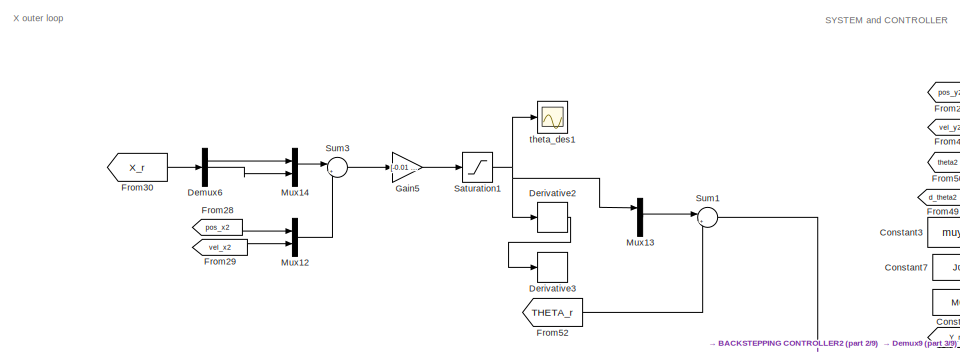
[diagram: root canvas - part 1/9, top center region]
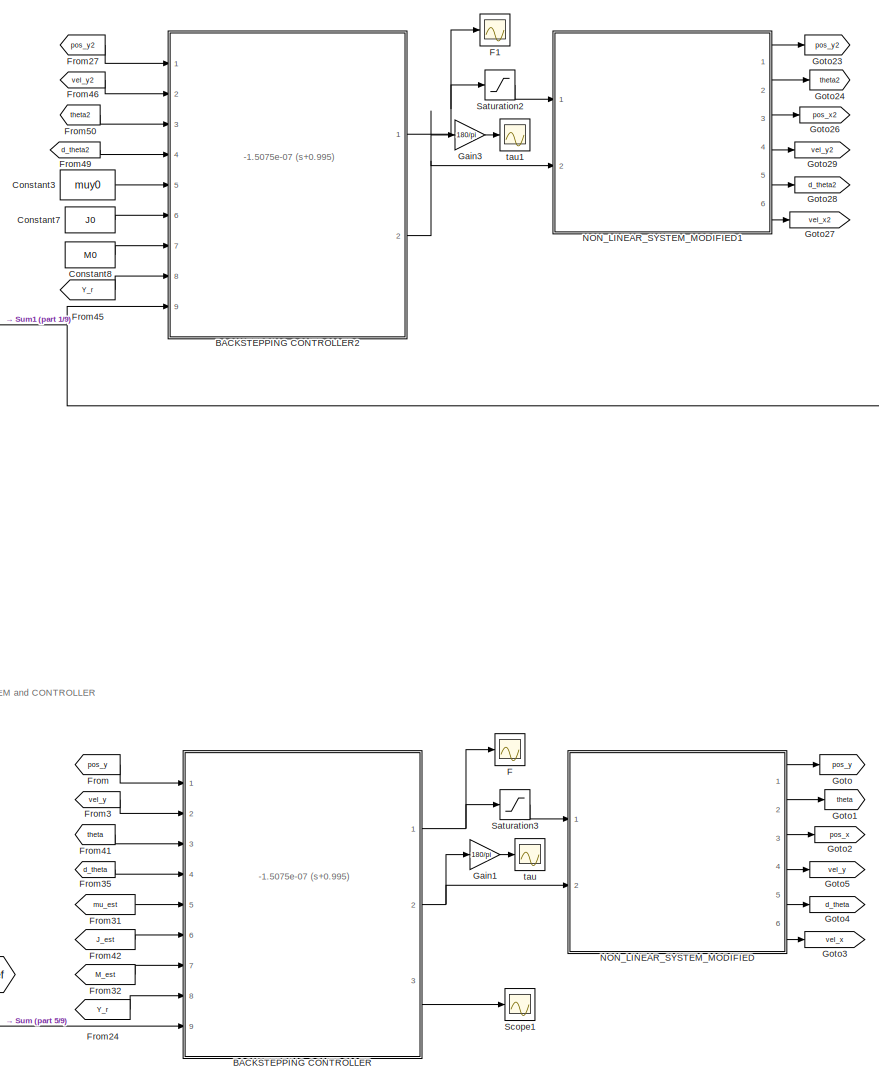
[diagram: root canvas - part 2/9, top right region]
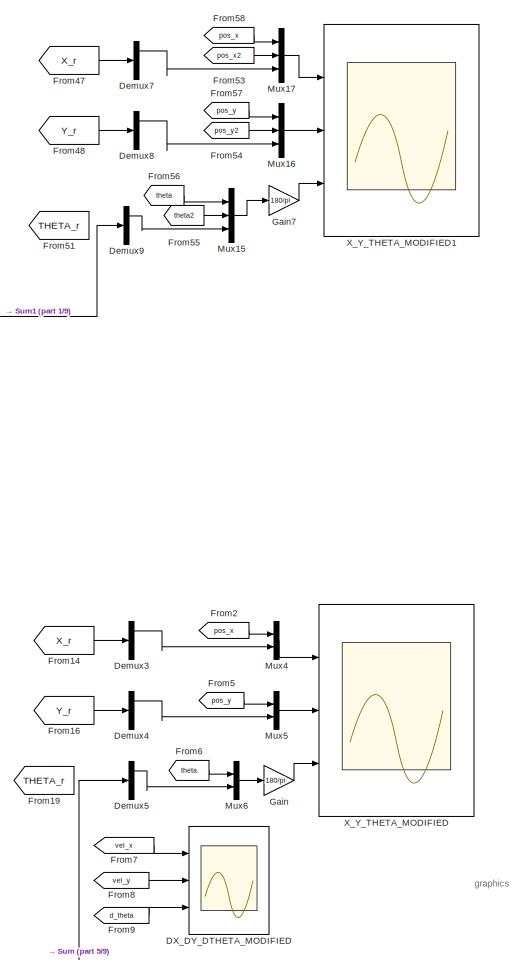
[diagram: root canvas - part 3/9, top right region]
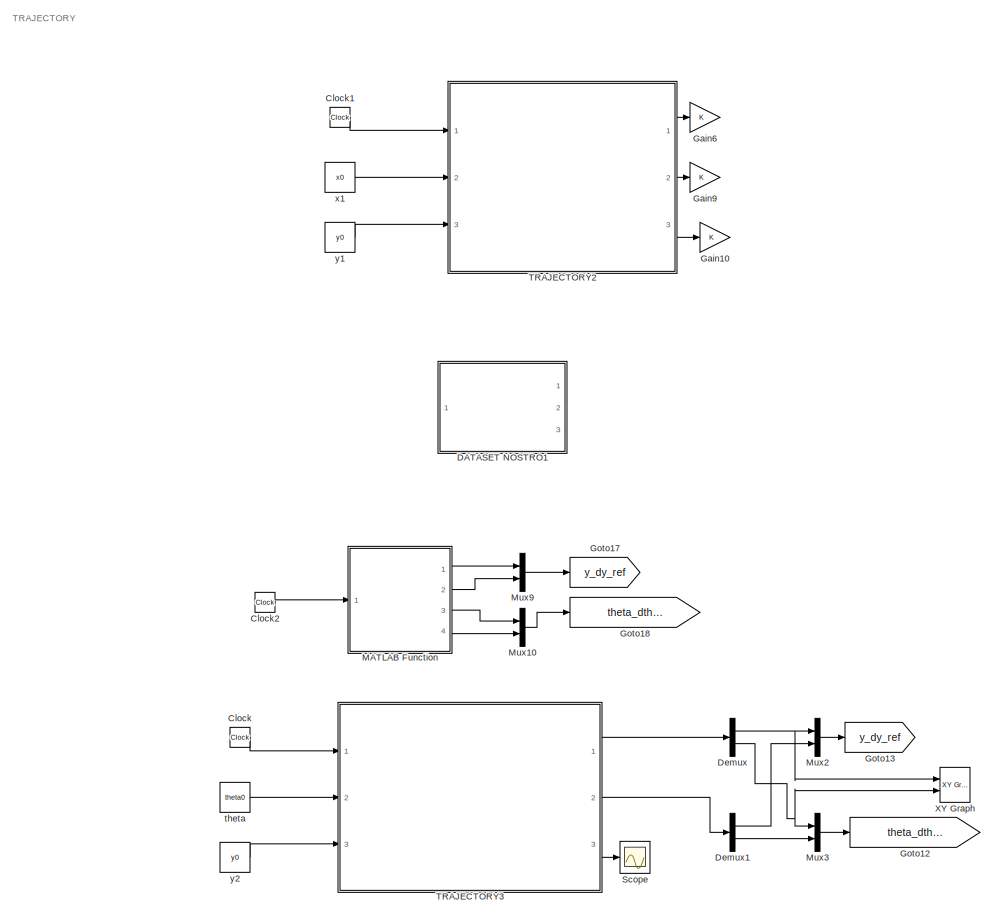
[diagram: root canvas - part 4/9, middle left region]
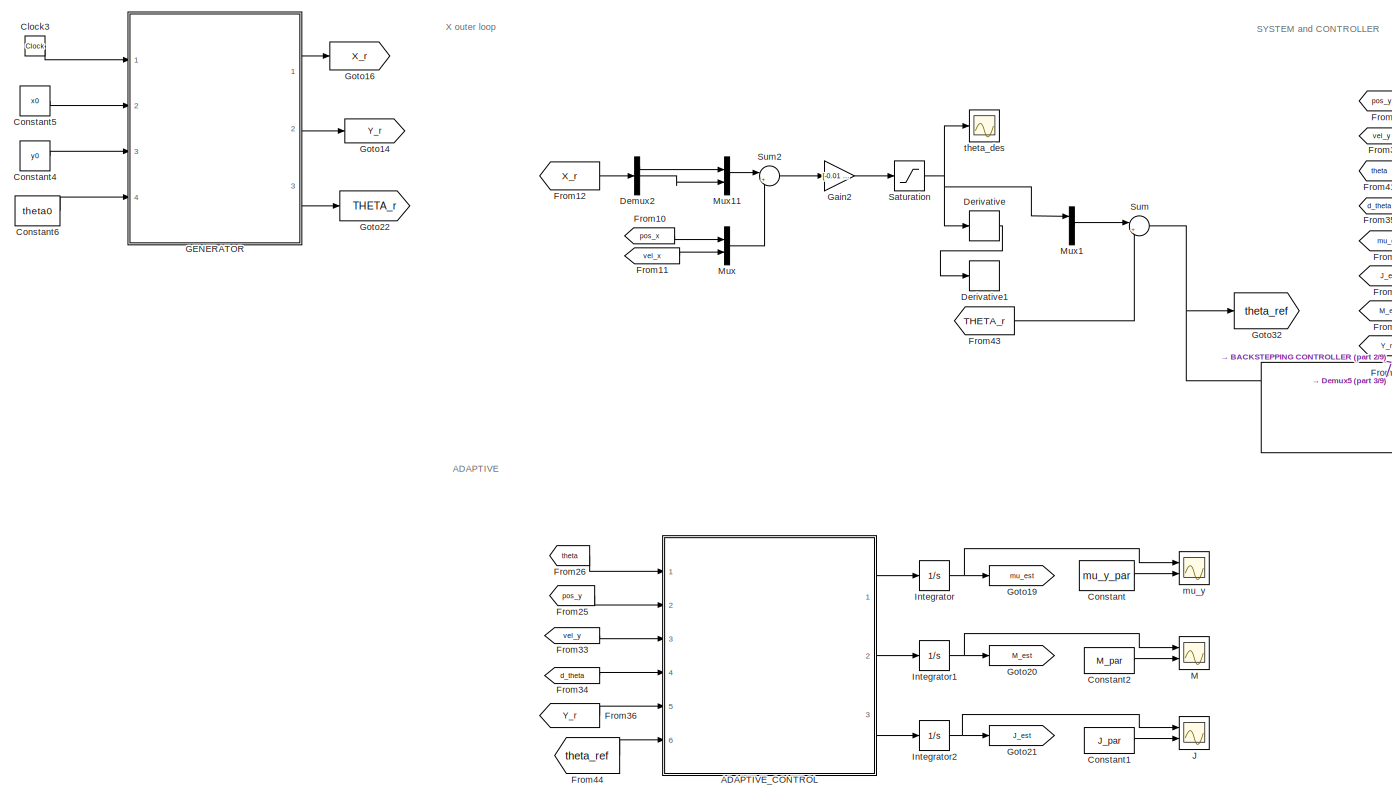
[diagram: root canvas - part 5/9, central region]
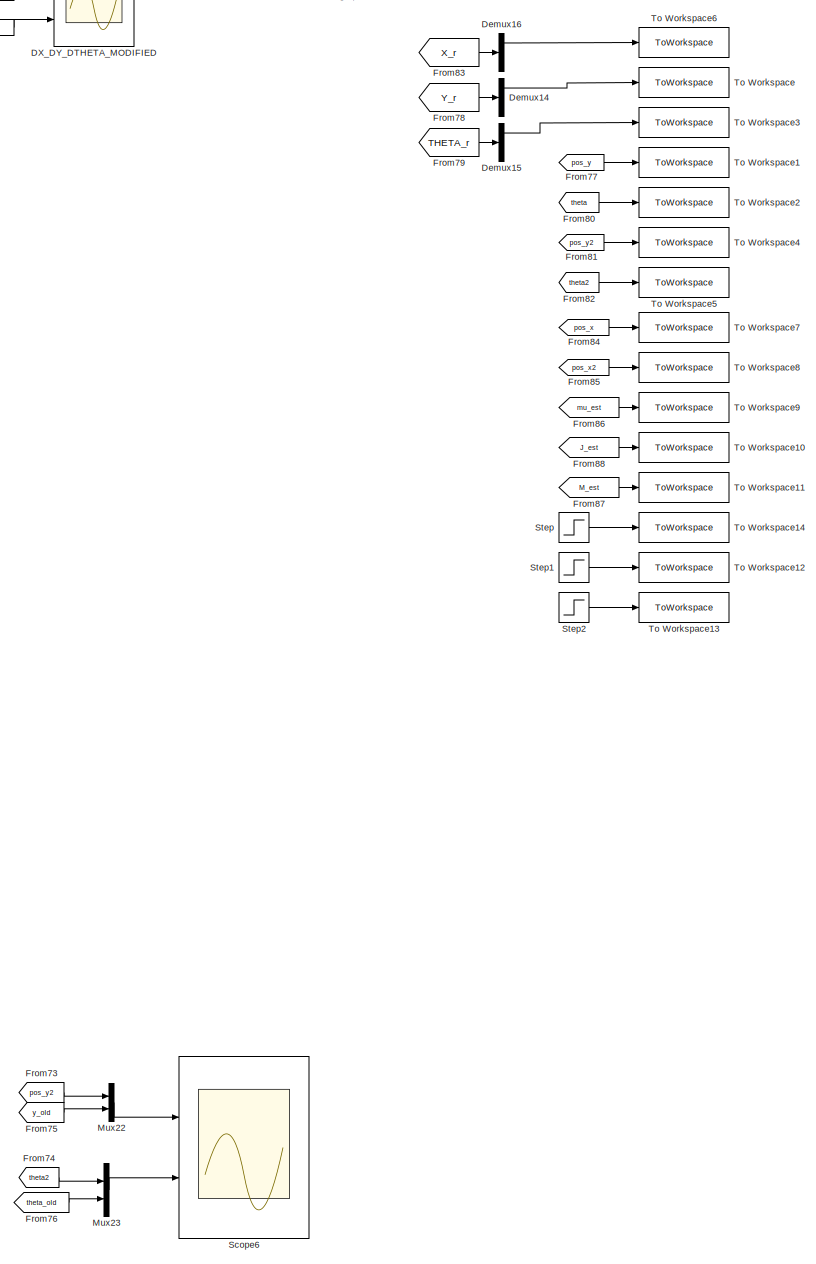
[diagram: root canvas - part 6/9, middle right region]
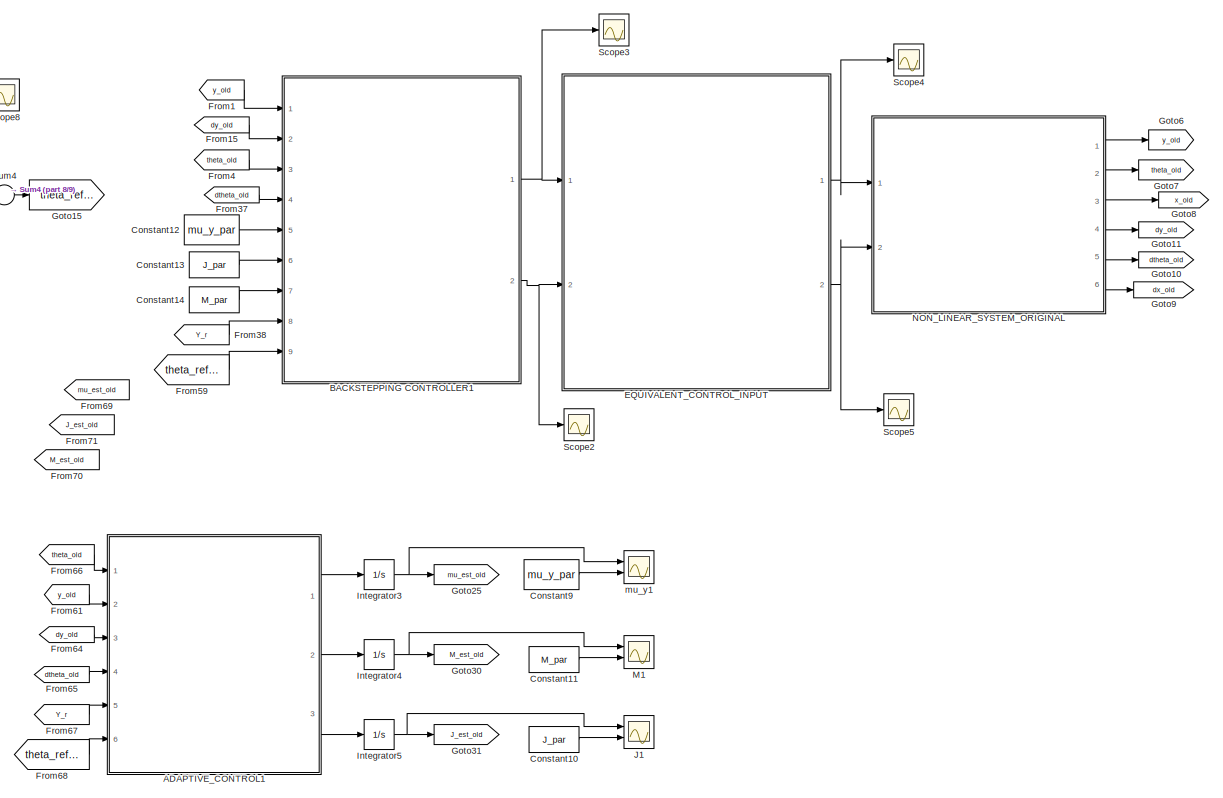
[diagram: root canvas - part 7/9, bottom center region]
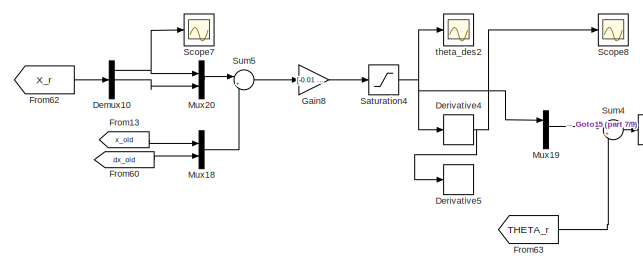
[diagram: root canvas - part 8/9, bottom center region]
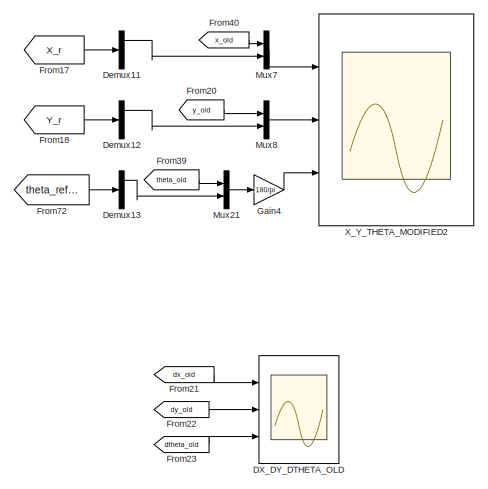
[diagram: root canvas - part 9/9, bottom right region]
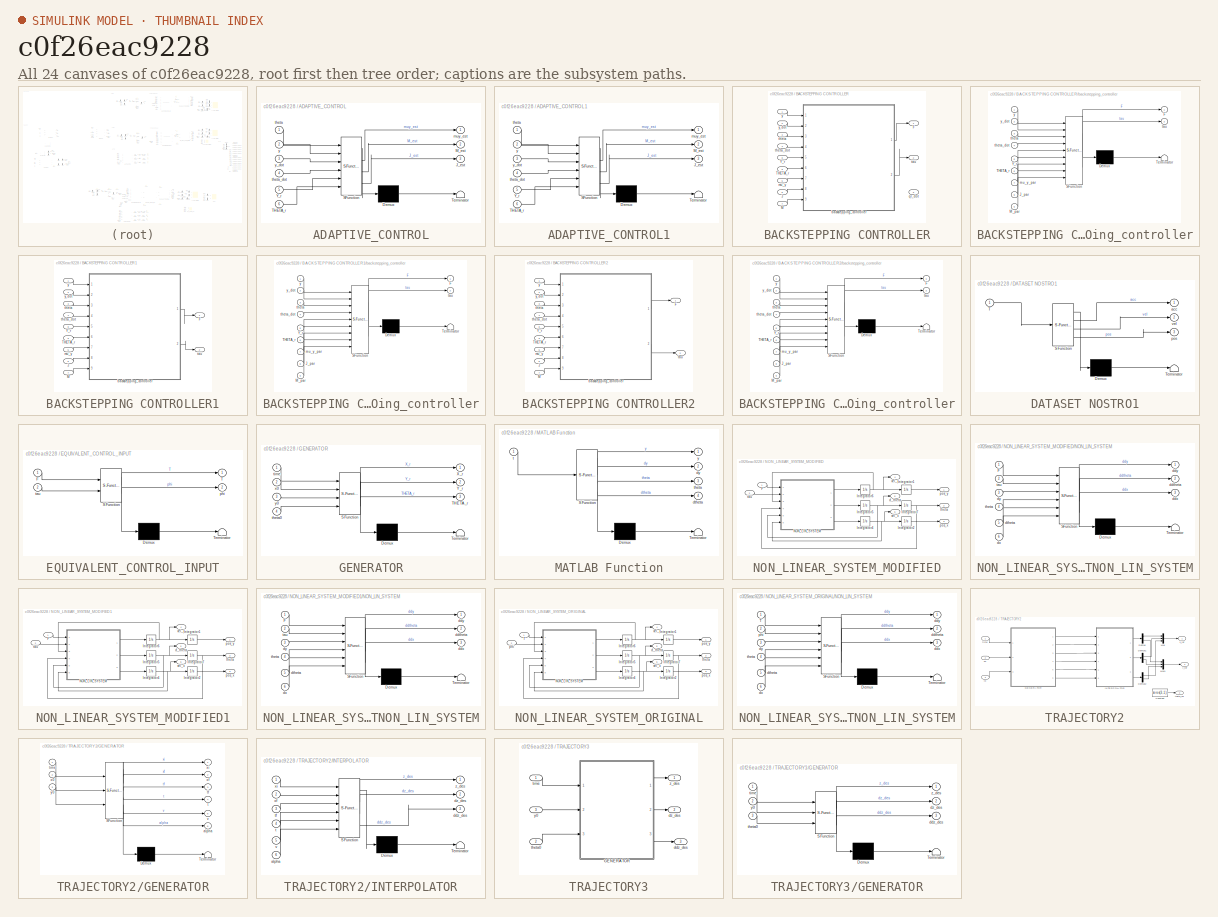
[diagram: thumbnail index - all 24 canvases of the model, root first then tree order]
MODEL slx_c0f26eac9228
KIND model
CONFIG AbsTol = auto
CONFIG EnableMultiTasking = off
CONFIG FixedStep = 1e-3
CONFIG MaxStep = auto
CONFIG MinStep = auto
CONFIG RelTol = 1e-3
CONFIG SampleTimeConstraint = Unconstrained
CONFIG SolverName = FixedStepAuto
CONFIG StartTime = 0.0
CONFIG StopTime = 500
BLOCK [SubSystem] ADAPTIVE_CONTROL
  ErrorFcn = Stateflow.Translate.translate
  PermitHierarchicalResolution = ExplicitOnly
  Ports = [6, 3]
  RequestExecContextInheritance = off
  SFBlockType = MATLAB Function
  TreatAsAtomicUnit = on
BLOCK [Demux] ADAPTIVE_CONTROL/ Demux 
  Outputs = 1
  Ports = [1, 1]
BLOCK [S-Function] ADAPTIVE_CONTROL/ SFunction 
  EnableBusSupport = on
  FunctionName = sf_sfun
  Parameters = g_par
  PortCounts = [6 4]
  Ports = [6, 4]
  SFcnIsStateOwnerBlock = off
  SFunctionDeploymentMode = off
  Tag = Stateflow S-Function 6
BLOCK [Terminator] ADAPTIVE_CONTROL/ Terminator 
BLOCK [Outport] ADAPTIVE_CONTROL/J_est
  Port = 3
BLOCK [Outport] ADAPTIVE_CONTROL/M_est
  Port = 2
BLOCK [Inport] ADAPTIVE_CONTROL/THETA_r
  Port = 6
BLOCK [Inport] ADAPTIVE_CONTROL/Y_r
  Port = 5
BLOCK [Outport] ADAPTIVE_CONTROL/muy_est
BLOCK [Inport] ADAPTIVE_CONTROL/theta
BLOCK [Inport] ADAPTIVE_CONTROL/theta_dot
  Port = 4
BLOCK [Inport] ADAPTIVE_CONTROL/y
  Port = 2
BLOCK [Inport] ADAPTIVE_CONTROL/y_dot
  Port = 3
BLOCK [SubSystem] ADAPTIVE_CONTROL1
  ErrorFcn = Stateflow.Translate.translate
  PermitHierarchicalResolution = ExplicitOnly
  Ports = [6, 3]
  RequestExecContextInheritance = off
  SFBlockType = MATLAB Function
  TreatAsAtomicUnit = on
BLOCK [Demux] ADAPTIVE_CONTROL1/ Demux 
  Outputs = 1
  Ports = [1, 1]
BLOCK [S-Function] ADAPTIVE_CONTROL1/ SFunction 
  EnableBusSupport = on
  FunctionName = sf_sfun
  Parameters = g_par
  PortCounts = [6 4]
  Ports = [6, 4]
  SFcnIsStateOwnerBlock = off
  SFunctionDeploymentMode = off
  Tag = Stateflow S-Function 15
BLOCK [Terminator] ADAPTIVE_CONTROL1/ Terminator 
BLOCK [Outport] ADAPTIVE_CONTROL1/J_est
  Port = 3
BLOCK [Outport] ADAPTIVE_CONTROL1/M_est
  Port = 2
BLOCK [Inport] ADAPTIVE_CONTROL1/THETA_r
  Port = 6
BLOCK [Inport] ADAPTIVE_CONTROL1/Y_r
  Port = 5
BLOCK [Outport] ADAPTIVE_CONTROL1/muy_est
BLOCK [Inport] ADAPTIVE_CONTROL1/theta
BLOCK [Inport] ADAPTIVE_CONTROL1/theta_dot
  Port = 4
BLOCK [Inport] ADAPTIVE_CONTROL1/y
  Port = 2
BLOCK [Inport] ADAPTIVE_CONTROL1/y_dot
  Port = 3
BLOCK [SubSystem] BACKSTEPPING CONTROLLER
  Ports = [9, 3]
  RequestExecContextInheritance = off
BLOCK [Outport] BACKSTEPPING CONTROLLER/F
BLOCK [Inport] BACKSTEPPING CONTROLLER/J
  Port = 6
BLOCK [Inport] BACKSTEPPING CONTROLLER/M
  Port = 7
BLOCK [Inport] BACKSTEPPING CONTROLLER/THETA_r
  Port = 9
BLOCK [Inport] BACKSTEPPING CONTROLLER/Y_r
  Port = 8
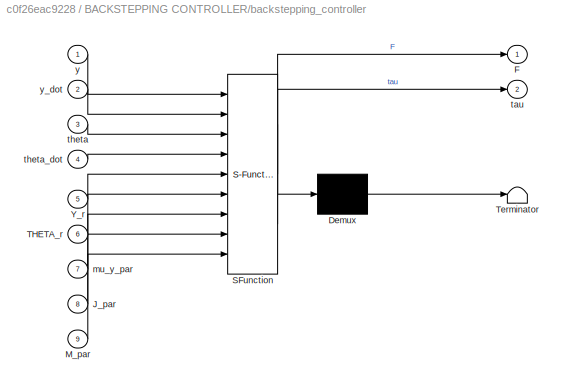
BLOCK [SubSystem] BACKSTEPPING CONTROLLER/backstepping_controller
  ErrorFcn = Stateflow.Translate.translate
  PermitHierarchicalResolution = ExplicitOnly
  Ports = [9, 2]
  RequestExecContextInheritance = off
  SFBlockType = MATLAB Function
  TreatAsAtomicUnit = on
BLOCK [Demux] BACKSTEPPING CONTROLLER/backstepping_controller/ Demux 
  Outputs = 1
  Ports = [1, 1]
BLOCK [S-Function] BACKSTEPPING CONTROLLER/backstepping_controller/ SFunction 
  EnableBusSupport = on
  FunctionName = sf_sfun
  Parameters = g_par
  PortCounts = [9 3]
  Ports = [9, 3]
  SFcnIsStateOwnerBlock = off
  SFunctionDeploymentMode = off
  Tag = Stateflow S-Function 1
BLOCK [Terminator] BACKSTEPPING CONTROLLER/backstepping_controller/ Terminator 
BLOCK [Outport] BACKSTEPPING CONTROLLER/backstepping_controller/F
BLOCK [Inport] BACKSTEPPING CONTROLLER/backstepping_controller/J_par
  Port = 8
BLOCK [Inport] BACKSTEPPING CONTROLLER/backstepping_controller/M_par
  Port = 9
BLOCK [Inport] BACKSTEPPING CONTROLLER/backstepping_controller/THETA_r
  Port = 6
BLOCK [Inport] BACKSTEPPING CONTROLLER/backstepping_controller/Y_r
  Port = 5
BLOCK [Inport] BACKSTEPPING CONTROLLER/backstepping_controller/mu_y_par
  Port = 7
BLOCK [Outport] BACKSTEPPING CONTROLLER/backstepping_controller/tau
  Port = 2
BLOCK [Inport] BACKSTEPPING CONTROLLER/backstepping_controller/theta
  Port = 3
BLOCK [Inport] BACKSTEPPING CONTROLLER/backstepping_controller/theta_dot
  Port = 4
BLOCK [Inport] BACKSTEPPING CONTROLLER/backstepping_controller/y
BLOCK [Inport] BACKSTEPPING CONTROLLER/backstepping_controller/y_dot
  Port = 2
BLOCK [Inport] BACKSTEPPING CONTROLLER/mu_y
  Port = 5
BLOCK [Outport] BACKSTEPPING CONTROLLER/qr_dot
  Port = 3
BLOCK [Outport] BACKSTEPPING CONTROLLER/tau
  Port = 2
BLOCK [Inport] BACKSTEPPING CONTROLLER/theta
  Port = 3
BLOCK [Inport] BACKSTEPPING CONTROLLER/theta_dot
  Port = 4
BLOCK [Inport] BACKSTEPPING CONTROLLER/y
BLOCK [Inport] BACKSTEPPING CONTROLLER/y_dot
  Port = 2
BLOCK [SubSystem] BACKSTEPPING CONTROLLER1
  Ports = [9, 2]
  RequestExecContextInheritance = off
BLOCK [Outport] BACKSTEPPING CONTROLLER1/F
BLOCK [Inport] BACKSTEPPING CONTROLLER1/J
  Port = 6
BLOCK [Inport] BACKSTEPPING CONTROLLER1/M
  Port = 7
BLOCK [Inport] BACKSTEPPING CONTROLLER1/THETA_r
  Port = 9
BLOCK [Inport] BACKSTEPPING CONTROLLER1/Y_r
  Port = 8
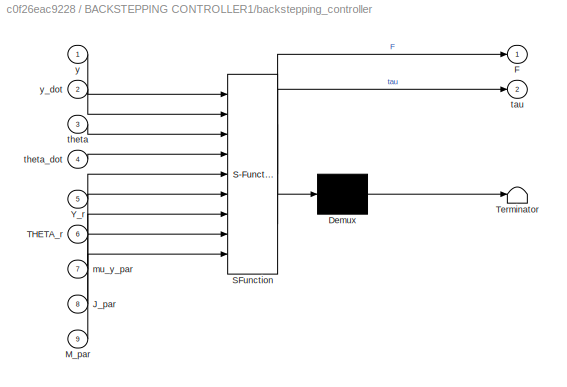
BLOCK [SubSystem] BACKSTEPPING CONTROLLER1/backstepping_controller
  ErrorFcn = Stateflow.Translate.translate
  PermitHierarchicalResolution = ExplicitOnly
  Ports = [9, 2]
  RequestExecContextInheritance = off
  SFBlockType = MATLAB Function
  TreatAsAtomicUnit = on
BLOCK [Demux] BACKSTEPPING CONTROLLER1/backstepping_controller/ Demux 
  Outputs = 1
  Ports = [1, 1]
BLOCK [S-Function] BACKSTEPPING CONTROLLER1/backstepping_controller/ SFunction 
  EnableBusSupport = on
  FunctionName = sf_sfun
  Parameters = g_par
  PortCounts = [9 3]
  Ports = [9, 3]
  SFcnIsStateOwnerBlock = off
  SFunctionDeploymentMode = off
  Tag = Stateflow S-Function 4
BLOCK [Terminator] BACKSTEPPING CONTROLLER1/backstepping_controller/ Terminator 
BLOCK [Outport] BACKSTEPPING CONTROLLER1/backstepping_controller/F
BLOCK [Inport] BACKSTEPPING CONTROLLER1/backstepping_controller/J_par
  Port = 8
BLOCK [Inport] BACKSTEPPING CONTROLLER1/backstepping_controller/M_par
  Port = 9
BLOCK [Inport] BACKSTEPPING CONTROLLER1/backstepping_controller/THETA_r
  Port = 6
BLOCK [Inport] BACKSTEPPING CONTROLLER1/backstepping_controller/Y_r
  Port = 5
BLOCK [Inport] BACKSTEPPING CONTROLLER1/backstepping_controller/mu_y_par
  Port = 7
BLOCK [Outport] BACKSTEPPING CONTROLLER1/backstepping_controller/tau
  Port = 2
BLOCK [Inport] BACKSTEPPING CONTROLLER1/backstepping_controller/theta
  Port = 3
BLOCK [Inport] BACKSTEPPING CONTROLLER1/backstepping_controller/theta_dot
  Port = 4
BLOCK [Inport] BACKSTEPPING CONTROLLER1/backstepping_controller/y
BLOCK [Inport] BACKSTEPPING CONTROLLER1/backstepping_controller/y_dot
  Port = 2
BLOCK [Inport] BACKSTEPPING CONTROLLER1/mu_y
  Port = 5
BLOCK [Outport] BACKSTEPPING CONTROLLER1/tau
  Port = 2
BLOCK [Inport] BACKSTEPPING CONTROLLER1/theta
  Port = 3
BLOCK [Inport] BACKSTEPPING CONTROLLER1/theta_dot
  Port = 4
BLOCK [Inport] BACKSTEPPING CONTROLLER1/y
BLOCK [Inport] BACKSTEPPING CONTROLLER1/y_dot
  Port = 2
BLOCK [SubSystem] BACKSTEPPING CONTROLLER2
  Ports = [9, 2]
  RequestExecContextInheritance = off
BLOCK [Outport] BACKSTEPPING CONTROLLER2/F
BLOCK [Inport] BACKSTEPPING CONTROLLER2/J
  Port = 6
BLOCK [Inport] BACKSTEPPING CONTROLLER2/M
  Port = 7
BLOCK [Inport] BACKSTEPPING CONTROLLER2/THETA_r
  Port = 9
BLOCK [Inport] BACKSTEPPING CONTROLLER2/Y_r
  Port = 8
BLOCK [SubSystem] BACKSTEPPING CONTROLLER2/backstepping_controller
  ErrorFcn = Stateflow.Translate.translate
  PermitHierarchicalResolution = ExplicitOnly
  Ports = [9, 2]
  RequestExecContextInheritance = off
  SFBlockType = MATLAB Function
  TreatAsAtomicUnit = on
BLOCK [Demux] BACKSTEPPING CONTROLLER2/backstepping_controller/ Demux 
  Outputs = 1
  Ports = [1, 1]
BLOCK [S-Function] BACKSTEPPING CONTROLLER2/backstepping_controller/ SFunction 
  EnableBusSupport = on
  FunctionName = sf_sfun
  Parameters = g_par
  PortCounts = [9 3]
  Ports = [9, 3]
  SFcnIsStateOwnerBlock = off
  SFunctionDeploymentMode = off
  Tag = Stateflow S-Function 12
BLOCK [Terminator] BACKSTEPPING CONTROLLER2/backstepping_controller/ Terminator 
BLOCK [Outport] BACKSTEPPING CONTROLLER2/backstepping_controller/F
BLOCK [Inport] BACKSTEPPING CONTROLLER2/backstepping_controller/J_par
  Port = 8
BLOCK [Inport] BACKSTEPPING CONTROLLER2/backstepping_controller/M_par
  Port = 9
BLOCK [Inport] BACKSTEPPING CONTROLLER2/backstepping_controller/THETA_r
  Port = 6
BLOCK [Inport] BACKSTEPPING CONTROLLER2/backstepping_controller/Y_r
  Port = 5
BLOCK [Inport] BACKSTEPPING CONTROLLER2/backstepping_controller/mu_y_par
  Port = 7
BLOCK [Outport] BACKSTEPPING CONTROLLER2/backstepping_controller/tau
  Port = 2
BLOCK [Inport] BACKSTEPPING CONTROLLER2/backstepping_controller/theta
  Port = 3
BLOCK [Inport] BACKSTEPPING CONTROLLER2/backstepping_controller/theta_dot
  Port = 4
BLOCK [Inport] BACKSTEPPING CONTROLLER2/backstepping_controller/y
BLOCK [Inport] BACKSTEPPING CONTROLLER2/backstepping_controller/y_dot
  Port = 2
BLOCK [Inport] BACKSTEPPING CONTROLLER2/mu_y
  Port = 5
BLOCK [Outport] BACKSTEPPING CONTROLLER2/tau
  Port = 2
BLOCK [Inport] BACKSTEPPING CONTROLLER2/theta
  Port = 3
BLOCK [Inport] BACKSTEPPING CONTROLLER2/theta_dot
  Port = 4
BLOCK [Inport] BACKSTEPPING CONTROLLER2/y
BLOCK [Inport] BACKSTEPPING CONTROLLER2/y_dot
  Port = 2
BLOCK [Clock] Clock
  Commented = on
BLOCK [Clock] Clock1
  Commented = on
BLOCK [Clock] Clock2
  Commented = on
BLOCK [Clock] Clock3
BLOCK [Constant] Constant
  Value = mu_y_par
BLOCK [Constant] Constant1
  Value = J_par
BLOCK [Constant] Constant10
  Value = J_par
BLOCK [Constant] Constant11
  Value = M_par
BLOCK [Constant] Constant12
  Value = mu_y_par
BLOCK [Constant] Constant13
  Value = J_par
BLOCK [Constant] Constant14
  Value = M_par
BLOCK [Constant] Constant2
  Value = M_par
BLOCK [Constant] Constant3
  Value = muy0
BLOCK [Constant] Constant4
  Value = y0
BLOCK [Constant] Constant5
  Value = x0
BLOCK [Constant] Constant6
  Value = theta0
BLOCK [Constant] Constant7
  Value = J0
BLOCK [Constant] Constant8
  Value = M0
BLOCK [Constant] Constant9
  Value = mu_y_par
BLOCK [SubSystem] DATASET NOSTRO1
  Commented = on
  ErrorFcn = Stateflow.Translate.translate
  PermitHierarchicalResolution = ExplicitOnly
  Ports = [1, 3]
  RequestExecContextInheritance = off
  SFBlockType = MATLAB Function
  TreatAsAtomicUnit = on
BLOCK [Demux] DATASET NOSTRO1/ Demux 
  Outputs = 1
  Ports = [1, 1]
BLOCK [S-Function] DATASET NOSTRO1/ SFunction 
  EnableBusSupport = on
  FunctionName = sf_sfun
  PortCounts = [1 4]
  Ports = [1, 4]
  SFcnIsStateOwnerBlock = off
  SFunctionDeploymentMode = off
  Tag = Stateflow S-Function 13
BLOCK [Terminator] DATASET NOSTRO1/ Terminator 
BLOCK [Inport] DATASET NOSTRO1/T
BLOCK [Outport] DATASET NOSTRO1/acc
BLOCK [Outport] DATASET NOSTRO1/pos
  Port = 3
BLOCK [Outport] DATASET NOSTRO1/vel
  Port = 2
BLOCK [Scope] DX_DY_DTHETA_MODIFIED
  Floating = off
  NumInputPorts = 3
  Ports = [3]
  ScopeSpecificationString = Simulink.scopes.TimeScopeBlockCfg('CurrentConfiguration', extmgr.ConfigurationSet(extmgr.Configuration('Core','General UI',true),extmgr.Configuration('Core','Source UI',true),extmgr.Configuration('Sources','WiredSimulink',true,'DataLoggingVariableName','ScopeData5'),extmgr.Configuration('Visuals','Time Domain',true,'SerializedDisplays',{struct('MinYLimReal','-4.75297','MaxYLimReal','7.87363','YLab...<+2760ch>
BLOCK [Scope] DX_DY_DTHETA_OLD
  Floating = off
  NumInputPorts = 3
  Ports = [3]
  ScopeSpecificationString = Simulink.scopes.TimeScopeBlockCfg('CurrentConfiguration', extmgr.ConfigurationSet(extmgr.Configuration('Core','General UI',true),extmgr.Configuration('Core','Source UI',true),extmgr.Configuration('Sources','WiredSimulink',true,'DataLoggingVariableName','ScopeData3'),extmgr.Configuration('Visuals','Time Domain',true,'SerializedDisplays',{struct('MinYLimReal','-6.24058','MaxYLimReal','0.6934','YLabe...<+2762ch>
BLOCK [Demux] Demux
  Commented = on
  Outputs = 2
  Ports = [1, 2]
BLOCK [Demux] Demux1
  Commented = on
  Outputs = 2
  Ports = [1, 2]
BLOCK [Demux] Demux10
  Outputs = 3
  Ports = [1, 3]
BLOCK [Demux] Demux11
  Outputs = 3
  Ports = [1, 3]
BLOCK [Demux] Demux12
  Outputs = 3
  Ports = [1, 3]
BLOCK [Demux] Demux13
  Outputs = 3
  Ports = [1, 3]
BLOCK [Demux] Demux14
  Outputs = 3
  Ports = [1, 3]
BLOCK [Demux] Demux15
  Outputs = 3
  Ports = [1, 3]
BLOCK [Demux] Demux16
  Outputs = 3
  Ports = [1, 3]
BLOCK [Demux] Demux2
  Outputs = 3
  Ports = [1, 3]
BLOCK [Demux] Demux3
  Outputs = 3
  Ports = [1, 3]
BLOCK [Demux] Demux4
  Outputs = 3
  Ports = [1, 3]
BLOCK [Demux] Demux5
  Outputs = 3
  Ports = [1, 3]
BLOCK [Demux] Demux6
  Outputs = 3
  Ports = [1, 3]
BLOCK [Demux] Demux7
  Outputs = 3
  Ports = [1, 3]
BLOCK [Demux] Demux8
  Outputs = 3
  Ports = [1, 3]
BLOCK [Demux] Demux9
  Outputs = 3
  Ports = [1, 3]
BLOCK [Derivative] Derivative
BLOCK [Derivative] Derivative1
BLOCK [Derivative] Derivative2
BLOCK [Derivative] Derivative3
BLOCK [Derivative] Derivative4
BLOCK [Derivative] Derivative5
BLOCK [SubSystem] EQUIVALENT_CONTROL_INPUT
  ErrorFcn = Stateflow.Translate.translate
  PermitHierarchicalResolution = ExplicitOnly
  Ports = [2, 2]
  RequestExecContextInheritance = off
  SFBlockType = MATLAB Function
  TreatAsAtomicUnit = on
BLOCK [Demux] EQUIVALENT_CONTROL_INPUT/ Demux 
  Outputs = 1
  Ports = [1, 1]
BLOCK [S-Function] EQUIVALENT_CONTROL_INPUT/ SFunction 
  EnableBusSupport = on
  FunctionName = sf_sfun
  Parameters = l_par
  PortCounts = [2 3]
  Ports = [2, 3]
  SFcnIsStateOwnerBlock = off
  SFunctionDeploymentMode = off
  Tag = Stateflow S-Function 5
BLOCK [Terminator] EQUIVALENT_CONTROL_INPUT/ Terminator 
BLOCK [Inport] EQUIVALENT_CONTROL_INPUT/F
BLOCK [Outport] EQUIVALENT_CONTROL_INPUT/T
BLOCK [Outport] EQUIVALENT_CONTROL_INPUT/phi
  Port = 2
BLOCK [Inport] EQUIVALENT_CONTROL_INPUT/tau
  Port = 2
BLOCK [Scope] F
  Floating = off
  NumInputPorts = 1
  Ports = [1]
  ScopeSpecificationString = Simulink.scopes.TimeScopeBlockCfg('CurrentConfiguration', extmgr.ConfigurationSet(extmgr.Configuration('Core','General UI',true),extmgr.Configuration('Core','Source UI',true),extmgr.Configuration('Sources','WiredSimulink',true,'DataLoggingVariableName','ScopeData2'),extmgr.Configuration('Visuals','Time Domain',true,'SerializedDisplays',{struct('MinYLimReal','3152421.42245','MaxYLimReal','7371117.3...<+1500ch>
BLOCK [Scope] F1
  Floating = off
  NumInputPorts = 1
  Ports = [1]
  ScopeSpecificationString = Simulink.scopes.TimeScopeBlockCfg('CurrentConfiguration', extmgr.ConfigurationSet(extmgr.Configuration('Core','General UI',true),extmgr.Configuration('Core','Source UI',true),extmgr.Configuration('Sources','WiredSimulink',true,'DataLoggingVariableName','ScopeData1'),extmgr.Configuration('Visuals','Time Domain',true,'SerializedDisplays',{struct('MinYLimReal','4181344.64175','MaxYLimReal','8053428.5...<+1502ch>
BLOCK [From] From
  GotoTag = pos_y
BLOCK [From] From1
  GotoTag = y_old
BLOCK [From] From10
  GotoTag = pos_x
BLOCK [From] From11
  GotoTag = vel_x
BLOCK [From] From12
  GotoTag = X_r
BLOCK [From] From13
  GotoTag = x_old
BLOCK [From] From14
  GotoTag = X_r
BLOCK [From] From15
  GotoTag = dy_old
BLOCK [From] From16
  GotoTag = Y_r
BLOCK [From] From17
  GotoTag = X_r
BLOCK [From] From18
  GotoTag = Y_r
BLOCK [From] From19
  GotoTag = THETA_r
BLOCK [From] From2
  GotoTag = pos_x
BLOCK [From] From20
  GotoTag = y_old
BLOCK [From] From21
  GotoTag = dx_old
BLOCK [From] From22
  GotoTag = dy_old
BLOCK [From] From23
  GotoTag = dtheta_old
BLOCK [From] From24
  GotoTag = Y_r
BLOCK [From] From25
  GotoTag = pos_y
BLOCK [From] From26
  GotoTag = theta
BLOCK [From] From27
  GotoTag = pos_y2
BLOCK [From] From28
  GotoTag = pos_x2
BLOCK [From] From29
  GotoTag = vel_x2
BLOCK [From] From3
  GotoTag = vel_y
BLOCK [From] From30
  GotoTag = X_r
BLOCK [From] From31
  GotoTag = mu_est
BLOCK [From] From32
  GotoTag = M_est
BLOCK [From] From33
  GotoTag = vel_y
BLOCK [From] From34
  GotoTag = d_theta
BLOCK [From] From35
  GotoTag = d_theta
BLOCK [From] From36
  GotoTag = Y_r
BLOCK [From] From37
  GotoTag = dtheta_old
BLOCK [From] From38
  GotoTag = Y_r
BLOCK [From] From39
  GotoTag = theta_old
BLOCK [From] From4
  GotoTag = theta_old
BLOCK [From] From40
  GotoTag = x_old
BLOCK [From] From41
  GotoTag = theta
BLOCK [From] From42
  GotoTag = J_est
BLOCK [From] From43
  GotoTag = THETA_r
BLOCK [From] From44
  GotoTag = theta_ref
BLOCK [From] From45
  GotoTag = Y_r
BLOCK [From] From46
  GotoTag = vel_y2
BLOCK [From] From47
  GotoTag = X_r
BLOCK [From] From48
  GotoTag = Y_r
BLOCK [From] From49
  GotoTag = d_theta2
BLOCK [From] From5
  GotoTag = pos_y
BLOCK [From] From50
  GotoTag = theta2
BLOCK [From] From51
  GotoTag = THETA_r
BLOCK [From] From52
  GotoTag = THETA_r
BLOCK [From] From53
  GotoTag = pos_x2
BLOCK [From] From54
  GotoTag = pos_y2
BLOCK [From] From55
  GotoTag = theta2
BLOCK [From] From56
  GotoTag = theta
BLOCK [From] From57
  GotoTag = pos_y
BLOCK [From] From58
  GotoTag = pos_x
BLOCK [From] From59
  GotoTag = theta_ref_old
BLOCK [From] From6
  GotoTag = theta
BLOCK [From] From60
  GotoTag = dx_old
BLOCK [From] From61
  GotoTag = y_old
BLOCK [From] From62
  GotoTag = X_r
BLOCK [From] From63
  GotoTag = THETA_r
BLOCK [From] From64
  GotoTag = dy_old
BLOCK [From] From65
  GotoTag = dtheta_old
BLOCK [From] From66
  GotoTag = theta_old
BLOCK [From] From67
  GotoTag = Y_r
BLOCK [From] From68
  GotoTag = theta_ref_old
BLOCK [From] From69
  GotoTag = mu_est_old
BLOCK [From] From7
  GotoTag = vel_x
BLOCK [From] From70
  GotoTag = M_est_old
BLOCK [From] From71
  GotoTag = J_est_old
BLOCK [From] From72
  GotoTag = theta_ref_old
BLOCK [From] From73
  GotoTag = pos_y2
BLOCK [From] From74
  GotoTag = theta2
BLOCK [From] From75
  GotoTag = y_old
BLOCK [From] From76
  GotoTag = theta_old
BLOCK [From] From77
  GotoTag = pos_y
BLOCK [From] From78
  GotoTag = Y_r
BLOCK [From] From79
  GotoTag = THETA_r
BLOCK [From] From8
  GotoTag = vel_y
BLOCK [From] From80
  GotoTag = theta
BLOCK [From] From81
  GotoTag = pos_y2
BLOCK [From] From82
  GotoTag = theta2
BLOCK [From] From83
  GotoTag = X_r
BLOCK [From] From84
  GotoTag = pos_x
BLOCK [From] From85
  GotoTag = pos_x2
BLOCK [From] From86
  GotoTag = mu_est
BLOCK [From] From87
  GotoTag = M_est
BLOCK [From] From88
  GotoTag = J_est
BLOCK [From] From9
  GotoTag = d_theta
BLOCK [SubSystem] GENERATOR
  ErrorFcn = Stateflow.Translate.translate
  PermitHierarchicalResolution = ExplicitOnly
  Ports = [4, 3]
  RequestExecContextInheritance = off
  SFBlockType = MATLAB Function
  TreatAsAtomicUnit = on
BLOCK [Demux] GENERATOR/ Demux 
  Outputs = 1
  Ports = [1, 1]
BLOCK [S-Function] GENERATOR/ SFunction 
  EnableBusSupport = on
  FunctionName = sf_sfun
  PortCounts = [4 4]
  Ports = [4, 4]
  SFcnIsStateOwnerBlock = off
  SFunctionDeploymentMode = off
  Tag = Stateflow S-Function 11
BLOCK [Terminator] GENERATOR/ Terminator 
BLOCK [Outport] GENERATOR/THETA_r
  Port = 3
BLOCK [Outport] GENERATOR/X_r
BLOCK [Outport] GENERATOR/Y_r
  Port = 2
BLOCK [Inport] GENERATOR/theta0
  Port = 4
BLOCK [Inport] GENERATOR/time
BLOCK [Inport] GENERATOR/x0
  Port = 2
BLOCK [Inport] GENERATOR/y0
  Port = 3
BLOCK [Gain] Gain
  Gain = 180/pi
BLOCK [Gain] Gain1
  Gain = 180/pi
BLOCK [Gain] Gain10
  Commented = on
BLOCK [Gain] Gain2
  Gain = [-0.01 -0.05]
  Multiplication = Matrix(K*u)
BLOCK [Gain] Gain3
  Gain = 180/pi
BLOCK [Gain] Gain4
  Gain = 180/pi
BLOCK [Gain] Gain5
  Gain = [-0.01 -0.05]
  Multiplication = Matrix(K*u)
BLOCK [Gain] Gain6
  Commented = on
BLOCK [Gain] Gain7
  Gain = 180/pi
BLOCK [Gain] Gain8
  Gain = [-0.01 -0.05]
  Multiplication = Matrix(K*u)
BLOCK [Gain] Gain9
  Commented = on
BLOCK [Goto] Goto
  GotoTag = pos_y
BLOCK [Goto] Goto1
  GotoTag = theta
BLOCK [Goto] Goto10
  GotoTag = dtheta_old
BLOCK [Goto] Goto11
  GotoTag = dy_old
BLOCK [Goto] Goto12
  Commented = on
  GotoTag = theta_dtheta_ref
BLOCK [Goto] Goto13
  Commented = on
  GotoTag = y_dy_ref
BLOCK [Goto] Goto14
  GotoTag = Y_r
BLOCK [Goto] Goto15
  GotoTag = theta_ref_old
BLOCK [Goto] Goto16
  GotoTag = X_r
BLOCK [Goto] Goto17
  Commented = on
  GotoTag = y_dy_ref
BLOCK [Goto] Goto18
  Commented = on
  GotoTag = theta_dtheta_ref
BLOCK [Goto] Goto19
  GotoTag = mu_est
BLOCK [Goto] Goto2
  GotoTag = pos_x
BLOCK [Goto] Goto20
  GotoTag = M_est
BLOCK [Goto] Goto21
  GotoTag = J_est
BLOCK [Goto] Goto22
  GotoTag = THETA_r
BLOCK [Goto] Goto23
  GotoTag = pos_y2
BLOCK [Goto] Goto24
  GotoTag = theta2
BLOCK [Goto] Goto25
  GotoTag = mu_est_old
BLOCK [Goto] Goto26
  GotoTag = pos_x2
BLOCK [Goto] Goto27
  GotoTag = vel_x2
BLOCK [Goto] Goto28
  GotoTag = d_theta2
BLOCK [Goto] Goto29
  GotoTag = vel_y2
BLOCK [Goto] Goto3
  GotoTag = vel_x
BLOCK [Goto] Goto30
  GotoTag = M_est_old
BLOCK [Goto] Goto31
  GotoTag = J_est_old
BLOCK [Goto] Goto32
  GotoTag = theta_ref
BLOCK [Goto] Goto4
  GotoTag = d_theta
BLOCK [Goto] Goto5
  GotoTag = vel_y
BLOCK [Goto] Goto6
  GotoTag = y_old
BLOCK [Goto] Goto7
  GotoTag = theta_old
BLOCK [Goto] Goto8
  GotoTag = x_old
BLOCK [Goto] Goto9
  GotoTag = dx_old
BLOCK [Integrator] Integrator
  InitialCondition = muy0
  Ports = [1, 1]
BLOCK [Integrator] Integrator1
  InitialCondition = M0
  Ports = [1, 1]
BLOCK [Integrator] Integrator2
  InitialCondition = J0
  Ports = [1, 1]
BLOCK [Integrator] Integrator3
  InitialCondition = muy0
  Ports = [1, 1]
BLOCK [Integrator] Integrator4
  InitialCondition = M0
  Ports = [1, 1]
BLOCK [Integrator] Integrator5
  InitialCondition = J0
  Ports = [1, 1]
BLOCK [Scope] J
  Floating = off
  NumInputPorts = 2
  Ports = [2]
  ScopeSpecificationString = Simulink.scopes.TimeScopeBlockCfg('CurrentConfiguration', extmgr.ConfigurationSet(extmgr.Configuration('Core','General UI',true),extmgr.Configuration('Core','Source UI',true),extmgr.Configuration('Sources','WiredSimulink',true,'DataLoggingVariableName','ScopeData3'),extmgr.Configuration('Visuals','Time Domain',true,'SerializedDisplays',{struct('MinYLimReal','138241557.4404','MaxYLimReal','29715931...<+1623ch>
BLOCK [Scope] J1
  Floating = off
  NumInputPorts = 2
  Ports = [2]
  ScopeSpecificationString = Simulink.scopes.TimeScopeBlockCfg('CurrentConfiguration', extmgr.ConfigurationSet(extmgr.Configuration('Core','General UI',true),extmgr.Configuration('Core','Source UI',true),extmgr.Configuration('Sources','WiredSimulink',true,'DataLoggingVariableName','ScopeData2'),extmgr.Configuration('Visuals','Time Domain',true,'SerializedDisplays',{struct('MinYLimReal','161180135.14017','MaxYLimReal','1961651...<+1627ch>
BLOCK [Scope] M
  Floating = off
  NumInputPorts = 2
  Ports = [2]
  ScopeSpecificationString = Simulink.scopes.TimeScopeBlockCfg('CurrentConfiguration', extmgr.ConfigurationSet(extmgr.Configuration('Core','General UI',true),extmgr.Configuration('Core','Source UI',true),extmgr.Configuration('Sources','WiredSimulink',true,'DataLoggingVariableName','ScopeData2'),extmgr.Configuration('Visuals','Time Domain',true,'SerializedDisplays',{struct('MinYLimReal','197932.92322','MaxYLimReal','718603.690...<+1603ch>
BLOCK [Scope] M1
  Floating = off
  NumInputPorts = 2
  Ports = [2]
  ScopeSpecificationString = Simulink.scopes.TimeScopeBlockCfg('CurrentConfiguration', extmgr.ConfigurationSet(extmgr.Configuration('Core','General UI',true),extmgr.Configuration('Core','Source UI',true),extmgr.Configuration('Sources','WiredSimulink',true,'DataLoggingVariableName','ScopeData3'),extmgr.Configuration('Visuals','Time Domain',true,'SerializedDisplays',{struct('MinYLimReal','218750.00000','MaxYLimReal','531250.000...<+1603ch>
BLOCK [SubSystem] MATLAB Function
  Commented = on
  ErrorFcn = Stateflow.Translate.translate
  PermitHierarchicalResolution = ExplicitOnly
  Ports = [1, 4]
  RequestExecContextInheritance = off
  SFBlockType = MATLAB Function
  TreatAsAtomicUnit = on
BLOCK [Demux] MATLAB Function/ Demux 
  Outputs = 1
  Ports = [1, 1]
BLOCK [S-Function] MATLAB Function/ SFunction 
  EnableBusSupport = on
  FunctionName = sf_sfun
  Parameters = theta0,y0
  PortCounts = [1 5]
  Ports = [1, 5]
  SFcnIsStateOwnerBlock = off
  SFunctionDeploymentMode = off
  Tag = Stateflow S-Function 10
BLOCK [Terminator] MATLAB Function/ Terminator 
BLOCK [Outport] MATLAB Function/dtheta
  Port = 4
BLOCK [Outport] MATLAB Function/dy
  Port = 2
BLOCK [Inport] MATLAB Function/t
BLOCK [Outport] MATLAB Function/theta
  Port = 3
BLOCK [Outport] MATLAB Function/y
BLOCK [Mux] Mux
  DisplayOption = bar
  Inputs = 2
  Ports = [2, 1]
BLOCK [Mux] Mux1
  DisplayOption = bar
  Inputs = 3
  Ports = [3, 1]
BLOCK [Mux] Mux10
  Commented = on
  DisplayOption = bar
  Inputs = 2
  Ports = [2, 1]
BLOCK [Mux] Mux11
  DisplayOption = bar
  Inputs = 2
  Ports = [2, 1]
BLOCK [Mux] Mux12
  DisplayOption = bar
  Inputs = 2
  Ports = [2, 1]
BLOCK [Mux] Mux13
  DisplayOption = bar
  Inputs = 3
  Ports = [3, 1]
BLOCK [Mux] Mux14
  DisplayOption = bar
  Inputs = 2
  Ports = [2, 1]
BLOCK [Mux] Mux15
  DisplayOption = bar
  Inputs = 3
  Ports = [3, 1]
BLOCK [Mux] Mux16
  DisplayOption = bar
  Inputs = 3
  Ports = [3, 1]
BLOCK [Mux] Mux17
  DisplayOption = bar
  Inputs = 3
  Ports = [3, 1]
BLOCK [Mux] Mux18
  DisplayOption = bar
  Inputs = 2
  Ports = [2, 1]
BLOCK [Mux] Mux19
  DisplayOption = bar
  Inputs = 3
  Ports = [3, 1]
BLOCK [Mux] Mux2
  Commented = on
  DisplayOption = bar
  Inputs = 2
  Ports = [2, 1]
BLOCK [Mux] Mux20
  DisplayOption = bar
  Inputs = 2
  Ports = [2, 1]
BLOCK [Mux] Mux21
  DisplayOption = bar
  Inputs = 2
  Ports = [2, 1]
BLOCK [Mux] Mux22
  DisplayOption = bar
  Inputs = 2
  Ports = [2, 1]
BLOCK [Mux] Mux23
  DisplayOption = bar
  Inputs = 2
  Ports = [2, 1]
BLOCK [Mux] Mux3
  Commented = on
  DisplayOption = bar
  Inputs = 2
  Ports = [2, 1]
BLOCK [Mux] Mux4
  DisplayOption = bar
  Inputs = 2
  Ports = [2, 1]
BLOCK [Mux] Mux5
  DisplayOption = bar
  Inputs = 2
  Ports = [2, 1]
BLOCK [Mux] Mux6
  DisplayOption = bar
  Inputs = 2
  Ports = [2, 1]
BLOCK [Mux] Mux7
  DisplayOption = bar
  Inputs = 2
  Ports = [2, 1]
BLOCK [Mux] Mux8
  DisplayOption = bar
  Inputs = 2
  Ports = [2, 1]
BLOCK [Mux] Mux9
  Commented = on
  DisplayOption = bar
  Inputs = 2
  Ports = [2, 1]
BLOCK [SubSystem] NON_LINEAR_SYSTEM_MODIFIED
  Ports = [2, 6]
  RequestExecContextInheritance = off
BLOCK [Inport] NON_LINEAR_SYSTEM_MODIFIED/F
BLOCK [Integrator] NON_LINEAR_SYSTEM_MODIFIED/Integrator1
  InitialCondition = y0
  Ports = [1, 1]
BLOCK [Integrator] NON_LINEAR_SYSTEM_MODIFIED/Integrator2
  InitialCondition = x0
  Ports = [1, 1]
BLOCK [Integrator] NON_LINEAR_SYSTEM_MODIFIED/Integrator4
  Ports = [1, 1]
BLOCK [Integrator] NON_LINEAR_SYSTEM_MODIFIED/Integrator5
  Ports = [1, 1]
BLOCK [Integrator] NON_LINEAR_SYSTEM_MODIFIED/Integrator6
  Ports = [1, 1]
BLOCK [Integrator] NON_LINEAR_SYSTEM_MODIFIED/Integrator7
  InitialCondition = theta0
  Ports = [1, 1]
BLOCK [SubSystem] NON_LINEAR_SYSTEM_MODIFIED/NON_LIN_SYSTEM
  ErrorFcn = Stateflow.Translate.translate
  PermitHierarchicalResolution = ExplicitOnly
  Ports = [6, 3]
  RequestExecContextInheritance = off
  SFBlockType = MATLAB Function
  TreatAsAtomicUnit = on
BLOCK [Demux] NON_LINEAR_SYSTEM_MODIFIED/NON_LIN_SYSTEM/ Demux 
  Outputs = 1
  Ports = [1, 1]
BLOCK [S-Function] NON_LINEAR_SYSTEM_MODIFIED/NON_LIN_SYSTEM/ SFunction 
  EnableBusSupport = on
  FunctionName = sf_sfun
  Parameters = J_par,M_par,g_par,l_par,mu_x_par,mu_y_par
  PortCounts = [6 4]
  Ports = [6, 4]
  SFcnIsStateOwnerBlock = off
  SFunctionDeploymentMode = off
  Tag = Stateflow S-Function 2
BLOCK [Terminator] NON_LINEAR_SYSTEM_MODIFIED/NON_LIN_SYSTEM/ Terminator 
BLOCK [Inport] NON_LINEAR_SYSTEM_MODIFIED/NON_LIN_SYSTEM/F
BLOCK [Outport] NON_LINEAR_SYSTEM_MODIFIED/NON_LIN_SYSTEM/ddtheta
  Port = 2
BLOCK [Outport] NON_LINEAR_SYSTEM_MODIFIED/NON_LIN_SYSTEM/ddx
  Port = 3
BLOCK [Outport] NON_LINEAR_SYSTEM_MODIFIED/NON_LIN_SYSTEM/ddy
BLOCK [Inport] NON_LINEAR_SYSTEM_MODIFIED/NON_LIN_SYSTEM/dtheta
  Port = 5
BLOCK [Inport] NON_LINEAR_SYSTEM_MODIFIED/NON_LIN_SYSTEM/dx
  Port = 6
BLOCK [Inport] NON_LINEAR_SYSTEM_MODIFIED/NON_LIN_SYSTEM/dy
  Port = 3
BLOCK [Inport] NON_LINEAR_SYSTEM_MODIFIED/NON_LIN_SYSTEM/tau
  Port = 2
BLOCK [Inport] NON_LINEAR_SYSTEM_MODIFIED/NON_LIN_SYSTEM/theta
  Port = 4
BLOCK [Outport] NON_LINEAR_SYSTEM_MODIFIED/d_theta
  Port = 5
BLOCK [Outport] NON_LINEAR_SYSTEM_MODIFIED/pos_x
  Port = 3
BLOCK [Outport] NON_LINEAR_SYSTEM_MODIFIED/pos_y
BLOCK [Inport] NON_LINEAR_SYSTEM_MODIFIED/tau
  Port = 2
BLOCK [Outport] NON_LINEAR_SYSTEM_MODIFIED/theta
  Port = 2
BLOCK [Outport] NON_LINEAR_SYSTEM_MODIFIED/vel_x
  Port = 6
BLOCK [Outport] NON_LINEAR_SYSTEM_MODIFIED/vel_y
  Port = 4
BLOCK [SubSystem] NON_LINEAR_SYSTEM_MODIFIED1
  Ports = [2, 6]
  RequestExecContextInheritance = off
BLOCK [Inport] NON_LINEAR_SYSTEM_MODIFIED1/F
BLOCK [Integrator] NON_LINEAR_SYSTEM_MODIFIED1/Integrator1
  InitialCondition = y0
  Ports = [1, 1]
BLOCK [Integrator] NON_LINEAR_SYSTEM_MODIFIED1/Integrator2
  InitialCondition = x0
  Ports = [1, 1]
BLOCK [Integrator] NON_LINEAR_SYSTEM_MODIFIED1/Integrator4
  Ports = [1, 1]
BLOCK [Integrator] NON_LINEAR_SYSTEM_MODIFIED1/Integrator5
  Ports = [1, 1]
BLOCK [Integrator] NON_LINEAR_SYSTEM_MODIFIED1/Integrator6
  Ports = [1, 1]
BLOCK [Integrator] NON_LINEAR_SYSTEM_MODIFIED1/Integrator7
  InitialCondition = theta0
  Ports = [1, 1]
BLOCK [SubSystem] NON_LINEAR_SYSTEM_MODIFIED1/NON_LIN_SYSTEM
  ErrorFcn = Stateflow.Translate.translate
  PermitHierarchicalResolution = ExplicitOnly
  Ports = [6, 3]
  RequestExecContextInheritance = off
  SFBlockType = MATLAB Function
  TreatAsAtomicUnit = on
BLOCK [Demux] NON_LINEAR_SYSTEM_MODIFIED1/NON_LIN_SYSTEM/ Demux 
  Outputs = 1
  Ports = [1, 1]
BLOCK [S-Function] NON_LINEAR_SYSTEM_MODIFIED1/NON_LIN_SYSTEM/ SFunction 
  EnableBusSupport = on
  FunctionName = sf_sfun
  Parameters = J_par,M_par,g_par,l_par,mu_x_par,mu_y_par
  PortCounts = [6 4]
  Ports = [6, 4]
  SFcnIsStateOwnerBlock = off
  SFunctionDeploymentMode = off
  Tag = Stateflow S-Function 14
BLOCK [Terminator] NON_LINEAR_SYSTEM_MODIFIED1/NON_LIN_SYSTEM/ Terminator 
BLOCK [Inport] NON_LINEAR_SYSTEM_MODIFIED1/NON_LIN_SYSTEM/F
BLOCK [Outport] NON_LINEAR_SYSTEM_MODIFIED1/NON_LIN_SYSTEM/ddtheta
  Port = 2
BLOCK [Outport] NON_LINEAR_SYSTEM_MODIFIED1/NON_LIN_SYSTEM/ddx
  Port = 3
BLOCK [Outport] NON_LINEAR_SYSTEM_MODIFIED1/NON_LIN_SYSTEM/ddy
BLOCK [Inport] NON_LINEAR_SYSTEM_MODIFIED1/NON_LIN_SYSTEM/dtheta
  Port = 5
BLOCK [Inport] NON_LINEAR_SYSTEM_MODIFIED1/NON_LIN_SYSTEM/dx
  Port = 6
BLOCK [Inport] NON_LINEAR_SYSTEM_MODIFIED1/NON_LIN_SYSTEM/dy
  Port = 3
BLOCK [Inport] NON_LINEAR_SYSTEM_MODIFIED1/NON_LIN_SYSTEM/tau
  Port = 2
BLOCK [Inport] NON_LINEAR_SYSTEM_MODIFIED1/NON_LIN_SYSTEM/theta
  Port = 4
BLOCK [Outport] NON_LINEAR_SYSTEM_MODIFIED1/d_theta
  Port = 5
BLOCK [Outport] NON_LINEAR_SYSTEM_MODIFIED1/pos_x
  Port = 3
BLOCK [Outport] NON_LINEAR_SYSTEM_MODIFIED1/pos_y
BLOCK [Inport] NON_LINEAR_SYSTEM_MODIFIED1/tau
  Port = 2
BLOCK [Outport] NON_LINEAR_SYSTEM_MODIFIED1/theta
  Port = 2
BLOCK [Outport] NON_LINEAR_SYSTEM_MODIFIED1/vel_x
  Port = 6
BLOCK [Outport] NON_LINEAR_SYSTEM_MODIFIED1/vel_y
  Port = 4
BLOCK [SubSystem] NON_LINEAR_SYSTEM_ORIGINAL
  Ports = [2, 6]
  RequestExecContextInheritance = off
BLOCK [Integrator] NON_LINEAR_SYSTEM_ORIGINAL/Integrator1
  InitialCondition = y0
  Ports = [1, 1]
BLOCK [Integrator] NON_LINEAR_SYSTEM_ORIGINAL/Integrator2
  InitialCondition = x0
  Ports = [1, 1]
BLOCK [Integrator] NON_LINEAR_SYSTEM_ORIGINAL/Integrator4
  Ports = [1, 1]
BLOCK [Integrator] NON_LINEAR_SYSTEM_ORIGINAL/Integrator5
  Ports = [1, 1]
BLOCK [Integrator] NON_LINEAR_SYSTEM_ORIGINAL/Integrator6
  Ports = [1, 1]
BLOCK [Integrator] NON_LINEAR_SYSTEM_ORIGINAL/Integrator7
  InitialCondition = theta0
  Ports = [1, 1]
BLOCK [SubSystem] NON_LINEAR_SYSTEM_ORIGINAL/NON_LIN_SYSTEM
  ErrorFcn = Stateflow.Translate.translate
  PermitHierarchicalResolution = ExplicitOnly
  Ports = [6, 3]
  RequestExecContextInheritance = off
  SFBlockType = MATLAB Function
  TreatAsAtomicUnit = on
BLOCK [Demux] NON_LINEAR_SYSTEM_ORIGINAL/NON_LIN_SYSTEM/ Demux 
  Outputs = 1
  Ports = [1, 1]
BLOCK [S-Function] NON_LINEAR_SYSTEM_ORIGINAL/NON_LIN_SYSTEM/ SFunction 
  EnableBusSupport = on
  FunctionName = sf_sfun
  Parameters = J_par,M_par,g_par,l_par,mu_x_par,mu_y_par
  PortCounts = [6 4]
  Ports = [6, 4]
  SFcnIsStateOwnerBlock = off
  SFunctionDeploymentMode = off
  Tag = Stateflow S-Function 3
BLOCK [Terminator] NON_LINEAR_SYSTEM_ORIGINAL/NON_LIN_SYSTEM/ Terminator 
BLOCK [Inport] NON_LINEAR_SYSTEM_ORIGINAL/NON_LIN_SYSTEM/T
BLOCK [Outport] NON_LINEAR_SYSTEM_ORIGINAL/NON_LIN_SYSTEM/ddtheta
  Port = 2
BLOCK [Outport] NON_LINEAR_SYSTEM_ORIGINAL/NON_LIN_SYSTEM/ddx
  Port = 3
BLOCK [Outport] NON_LINEAR_SYSTEM_ORIGINAL/NON_LIN_SYSTEM/ddy
BLOCK [Inport] NON_LINEAR_SYSTEM_ORIGINAL/NON_LIN_SYSTEM/dtheta
  Port = 5
BLOCK [Inport] NON_LINEAR_SYSTEM_ORIGINAL/NON_LIN_SYSTEM/dx
  Port = 6
BLOCK [Inport] NON_LINEAR_SYSTEM_ORIGINAL/NON_LIN_SYSTEM/dy
  Port = 3
BLOCK [Inport] NON_LINEAR_SYSTEM_ORIGINAL/NON_LIN_SYSTEM/phi
  Port = 2
BLOCK [Inport] NON_LINEAR_SYSTEM_ORIGINAL/NON_LIN_SYSTEM/theta
  Port = 4
BLOCK [Inport] NON_LINEAR_SYSTEM_ORIGINAL/T
BLOCK [Outport] NON_LINEAR_SYSTEM_ORIGINAL/d_theta
  Port = 5
BLOCK [Inport] NON_LINEAR_SYSTEM_ORIGINAL/phi
  Port = 2
BLOCK [Outport] NON_LINEAR_SYSTEM_ORIGINAL/pos_x
  Port = 3
BLOCK [Outport] NON_LINEAR_SYSTEM_ORIGINAL/pos_y
BLOCK [Outport] NON_LINEAR_SYSTEM_ORIGINAL/theta
  Port = 2
BLOCK [Outport] NON_LINEAR_SYSTEM_ORIGINAL/vel_x
  Port = 6
BLOCK [Outport] NON_LINEAR_SYSTEM_ORIGINAL/vel_y
  Port = 4
BLOCK [Saturate] Saturation
  LowerLimit = -0.2
  UpperLimit = 0.2
BLOCK [Saturate] Saturation1
  LowerLimit = -0.2
  UpperLimit = 0.2
BLOCK [Saturate] Saturation2
  Commented = through
  LowerLimit = 0
  UpperLimit = 1e9
BLOCK [Saturate] Saturation3
  Commented = through
  LowerLimit = 0
  UpperLimit = 1e9
BLOCK [Saturate] Saturation4
  LowerLimit = -0.2
  UpperLimit = 0.2
BLOCK [Scope] Scope
  Commented = on
  Floating = off
  NumInputPorts = 1
  Ports = [1]
  ScopeSpecificationString = Simulink.scopes.TimeScopeBlockCfg('CurrentConfiguration', extmgr.ConfigurationSet(extmgr.Configuration('Core','General UI',true),extmgr.Configuration('Core','Source UI',true),extmgr.Configuration('Sources','WiredSimulink',true,'DataLoggingVariableName','ScopeData1'),extmgr.Configuration('Visuals','Time Domain',true),extmgr.Configuration('Tools','Plot Navigation',true),extmgr.Configuration('Tools',...<+40ch>
BLOCK [Scope] Scope1
  Floating = off
  NumInputPorts = 1
  Ports = [1]
  ScopeSpecificationString = Simulink.scopes.TimeScopeBlockCfg('CurrentConfiguration', extmgr.ConfigurationSet(extmgr.Configuration('Core','General UI',true),extmgr.Configuration('Core','Source UI',true),extmgr.Configuration('Sources','WiredSimulink',true,'DataLoggingVariableName','ScopeData1'),extmgr.Configuration('Visuals','Time Domain',true,'SerializedDisplays',{struct('MinYLimReal','-1.00000','MaxYLimReal','1.00000','YLab...<+1444ch>
BLOCK [Scope] Scope2
  Floating = off
  NumInputPorts = 1
  Ports = [1]
  ScopeSpecificationString = Simulink.scopes.TimeScopeBlockCfg('CurrentConfiguration', extmgr.ConfigurationSet(extmgr.Configuration('Core','General UI',true),extmgr.Configuration('Core','Source UI',true),extmgr.Configuration('Sources','WiredSimulink',true,'DataLoggingVariableName','ScopeData6'),extmgr.Configuration('Visuals','Time Domain',true,'SerializedDisplays',{struct('MinYLimReal','-192708173898274.875','MaxYLimReal','19...<+1552ch>
BLOCK [Scope] Scope3
  Floating = off
  NumInputPorts = 1
  Ports = [1]
  ScopeSpecificationString = Simulink.scopes.TimeScopeBlockCfg('CurrentConfiguration', extmgr.ConfigurationSet(extmgr.Configuration('Core','General UI',true),extmgr.Configuration('Core','Source UI',true),extmgr.Configuration('Sources','WiredSimulink',true,'DataLoggingVariableName','ScopeData7'),extmgr.Configuration('Visuals','Time Domain',true,'SerializedDisplays',{struct('MinYLimReal','4400211.89688','MaxYLimReal','7453956.4...<+1502ch>
BLOCK [Scope] Scope4
  Floating = off
  NumInputPorts = 1
  Ports = [1]
  ScopeSpecificationString = Simulink.scopes.TimeScopeBlockCfg('CurrentConfiguration', extmgr.ConfigurationSet(extmgr.Configuration('Core','General UI',true),extmgr.Configuration('Core','Source UI',true),extmgr.Configuration('Sources','WiredSimulink',true,'DataLoggingVariableName','ScopeData8'),extmgr.Configuration('Visuals','Time Domain',true,'SerializedDisplays',{struct('MinYLimReal','4364188.57896','MaxYLimReal','7778166.6...<+1431ch>
BLOCK [Scope] Scope5
  Floating = off
  NumInputPorts = 1
  Ports = [1]
  ScopeSpecificationString = Simulink.scopes.TimeScopeBlockCfg('CurrentConfiguration', extmgr.ConfigurationSet(extmgr.Configuration('Core','General UI',true),extmgr.Configuration('Core','Source UI',true),extmgr.Configuration('Sources','WiredSimulink',true,'DataLoggingVariableName','ScopeData9'),extmgr.Configuration('Visuals','Time Domain',true,'SerializedDisplays',{struct('MinYLimReal','-0.1172','MaxYLimReal','0.32336','YLabe...<+1437ch>
BLOCK [Scope] Scope6
  Floating = off
  NumInputPorts = 2
  Ports = [2]
  ScopeSpecificationString = Simulink.scopes.TimeScopeBlockCfg('CurrentConfiguration', extmgr.ConfigurationSet(extmgr.Configuration('Core','General UI',true),extmgr.Configuration('Core','Source UI',true),extmgr.Configuration('Sources','WiredSimulink',true,'DataLoggingVariableName','ScopeData10'),extmgr.Configuration('Visuals','Time Domain',true,'SerializedDisplays',{struct('MinYLimReal','-17.50679','MaxYLimReal','7.50075','YL...<+2267ch>
BLOCK [Scope] Scope7
  Floating = off
  NumInputPorts = 1
  Ports = [1]
  ScopeSpecificationString = Simulink.scopes.TimeScopeBlockCfg('CurrentConfiguration', extmgr.ConfigurationSet(extmgr.Configuration('Core','General UI',true),extmgr.Configuration('Core','Source UI',true),extmgr.Configuration('Sources','WiredSimulink',true,'DataLoggingVariableName','ScopeData11'),extmgr.Configuration('Visuals','Time Domain',true,'SerializedDisplays',{struct('MinYLimReal','-23.00000','MaxYLimReal','27.00000','Y...<+1375ch>
BLOCK [Scope] Scope8
  Floating = off
  NumInputPorts = 1
  Ports = [1]
  ScopeSpecificationString = Simulink.scopes.TimeScopeBlockCfg('CurrentConfiguration', extmgr.ConfigurationSet(extmgr.Configuration('Core','General UI',true),extmgr.Configuration('Core','Source UI',true),extmgr.Configuration('Sources','WiredSimulink',true,'DataLoggingVariableName','ScopeData12'),extmgr.Configuration('Visuals','Time Domain',true,'SerializedDisplays',{struct('MinYLimReal','-0.47397','MaxYLimReal','0.23593','YLa...<+1398ch>
BLOCK [Step] Step
  After = mu_y_par
  SampleTime = 0
  Time = 0
BLOCK [Step] Step1
  After = J_par
  SampleTime = 0
  Time = 0
BLOCK [Step] Step2
  After = M_par
  SampleTime = 0
  Time = 0
BLOCK [Sum] Sum
  Inputs = |++
  Ports = [2, 1]
BLOCK [Sum] Sum1
  Inputs = |++
  Ports = [2, 1]
BLOCK [Sum] Sum2
  Inputs = |+-
  Ports = [2, 1]
BLOCK [Sum] Sum3
  Inputs = |+-
  Ports = [2, 1]
BLOCK [Sum] Sum4
  Inputs = |++
  Ports = [2, 1]
BLOCK [Sum] Sum5
  Inputs = |+-
  Ports = [2, 1]
BLOCK [SubSystem] TRAJECTORY2
  Commented = on
  Ports = [3, 3]
  RequestExecContextInheritance = off
BLOCK [Constant] TRAJECTORY2/Constant
  Value = zeros(3,1);
BLOCK [Demux] TRAJECTORY2/Demux
  Outputs = 2
  Ports = [1, 2]
BLOCK [Demux] TRAJECTORY2/Demux1
  Outputs = 2
  Ports = [1, 2]
BLOCK [Demux] TRAJECTORY2/Demux2
  Outputs = 2
  Ports = [1, 2]
BLOCK [SubSystem] TRAJECTORY2/GENERATOR
  ErrorFcn = Stateflow.Translate.translate
  PermitHierarchicalResolution = ExplicitOnly
  Ports = [3, 6]
  RequestExecContextInheritance = off
  SFBlockType = MATLAB Function
  TreatAsAtomicUnit = on
BLOCK [Demux] TRAJECTORY2/GENERATOR/ Demux 
  Outputs = 1
  Ports = [1, 1]
BLOCK [S-Function] TRAJECTORY2/GENERATOR/ SFunction 
  EnableBusSupport = on
  FunctionName = sf_sfun
  PortCounts = [3 7]
  Ports = [3, 7]
  SFcnIsStateOwnerBlock = off
  SFunctionDeploymentMode = off
  Tag = Stateflow S-Function 7
BLOCK [Terminator] TRAJECTORY2/GENERATOR/ Terminator 
BLOCK [Outport] TRAJECTORY2/GENERATOR/alpha
  Port = 6
BLOCK [Outport] TRAJECTORY2/GENERATOR/t
  Port = 4
BLOCK [Outport] TRAJECTORY2/GENERATOR/tf
  Port = 3
BLOCK [Inport] TRAJECTORY2/GENERATOR/time
BLOCK [Outport] TRAJECTORY2/GENERATOR/v
  Port = 5
BLOCK [Inport] TRAJECTORY2/GENERATOR/x0
  Port = 2
BLOCK [Outport] TRAJECTORY2/GENERATOR/xf
  Port = 2
BLOCK [Outport] TRAJECTORY2/GENERATOR/xi
BLOCK [Inport] TRAJECTORY2/GENERATOR/y0
  Port = 3
BLOCK [SubSystem] TRAJECTORY2/INTERPOLATOR
  ErrorFcn = Stateflow.Translate.translate
  PermitHierarchicalResolution = ExplicitOnly
  Ports = [6, 3]
  RequestExecContextInheritance = off
  SFBlockType = MATLAB Function
  TreatAsAtomicUnit = on
BLOCK [Demux] TRAJECTORY2/INTERPOLATOR/ Demux 
  Outputs = 1
  Ports = [1, 1]
BLOCK [S-Function] TRAJECTORY2/INTERPOLATOR/ SFunction 
  EnableBusSupport = on
  FunctionName = sf_sfun
  PortCounts = [6 4]
  Ports = [6, 4]
  SFcnIsStateOwnerBlock = off
  SFunctionDeploymentMode = off
  Tag = Stateflow S-Function 8
BLOCK [Terminator] TRAJECTORY2/INTERPOLATOR/ Terminator 
BLOCK [Inport] TRAJECTORY2/INTERPOLATOR/alpha
  Port = 6
BLOCK [Outport] TRAJECTORY2/INTERPOLATOR/ddz_des
  Port = 3
BLOCK [Outport] TRAJECTORY2/INTERPOLATOR/dz_des
  Port = 2
BLOCK [Inport] TRAJECTORY2/INTERPOLATOR/t
  Port = 4
BLOCK [Inport] TRAJECTORY2/INTERPOLATOR/tf
  Port = 3
BLOCK [Inport] TRAJECTORY2/INTERPOLATOR/v
  Port = 5
BLOCK [Inport] TRAJECTORY2/INTERPOLATOR/xf
  Port = 2
BLOCK [Inport] TRAJECTORY2/INTERPOLATOR/xi
BLOCK [Outport] TRAJECTORY2/INTERPOLATOR/z_des
BLOCK [Mux] TRAJECTORY2/Mux
  DisplayOption = bar
  Inputs = 3
  Ports = [3, 1]
BLOCK [Mux] TRAJECTORY2/Mux1
  DisplayOption = bar
  Inputs = 3
  Ports = [3, 1]
BLOCK [Outport] TRAJECTORY2/theta_ref
  Port = 3
BLOCK [Inport] TRAJECTORY2/time
BLOCK [Inport] TRAJECTORY2/x0
  Port = 2
BLOCK [Outport] TRAJECTORY2/x_ref
BLOCK [Inport] TRAJECTORY2/y0
  Port = 3
BLOCK [Outport] TRAJECTORY2/y_ref
  Port = 2
BLOCK [SubSystem] TRAJECTORY3
  Commented = on
  Ports = [3, 3]
  RequestExecContextInheritance = off
BLOCK [SubSystem] TRAJECTORY3/GENERATOR
  ErrorFcn = Stateflow.Translate.translate
  PermitHierarchicalResolution = ExplicitOnly
  Ports = [3, 3]
  RequestExecContextInheritance = off
  SFBlockType = MATLAB Function
  TreatAsAtomicUnit = on
BLOCK [Demux] TRAJECTORY3/GENERATOR/ Demux 
  Outputs = 1
  Ports = [1, 1]
BLOCK [S-Function] TRAJECTORY3/GENERATOR/ SFunction 
  EnableBusSupport = on
  FunctionName = sf_sfun
  PortCounts = [3 4]
  Ports = [3, 4]
  SFcnIsStateOwnerBlock = off
  SFunctionDeploymentMode = off
  Tag = Stateflow S-Function 9
BLOCK [Terminator] TRAJECTORY3/GENERATOR/ Terminator 
BLOCK [Outport] TRAJECTORY3/GENERATOR/ddz_des
  Port = 3
BLOCK [Outport] TRAJECTORY3/GENERATOR/dz_des
  Port = 2
BLOCK [Inport] TRAJECTORY3/GENERATOR/theta0
  Port = 3
BLOCK [Inport] TRAJECTORY3/GENERATOR/time
BLOCK [Inport] TRAJECTORY3/GENERATOR/y0
  Port = 2
BLOCK [Outport] TRAJECTORY3/GENERATOR/z_des
BLOCK [Outport] TRAJECTORY3/ddz_des
  Port = 3
BLOCK [Outport] TRAJECTORY3/dz_des
  Port = 2
BLOCK [Inport] TRAJECTORY3/theta0
  Port = 2
BLOCK [Inport] TRAJECTORY3/time
BLOCK [Inport] TRAJECTORY3/y0
  Port = 3
BLOCK [Outport] TRAJECTORY3/z_des
BLOCK [ToWorkspace] To Workspace
  FixptAsFi = on
  MaxDataPoints = inf
  Ports = [1]
  SampleTime = -1
  SaveFormat = Timeseries
  VariableName = y_ref
BLOCK [ToWorkspace] To Workspace1
  FixptAsFi = on
  MaxDataPoints = inf
  Ports = [1]
  SampleTime = -1
  SaveFormat = Timeseries
  VariableName = y_ad
BLOCK [ToWorkspace] To Workspace10
  FixptAsFi = on
  MaxDataPoints = inf
  Ports = [1]
  SampleTime = -1
  SaveFormat = Timeseries
  VariableName = J_est
BLOCK [ToWorkspace] To Workspace11
  FixptAsFi = on
  MaxDataPoints = inf
  Ports = [1]
  SampleTime = -1
  SaveFormat = Timeseries
  VariableName = M_est
BLOCK [ToWorkspace] To Workspace12
  FixptAsFi = on
  MaxDataPoints = inf
  Ports = [1]
  SampleTime = -1
  SaveFormat = Timeseries
  VariableName = J_real
BLOCK [ToWorkspace] To Workspace13
  FixptAsFi = on
  MaxDataPoints = inf
  Ports = [1]
  SampleTime = -1
  SaveFormat = Timeseries
  VariableName = M_real
BLOCK [ToWorkspace] To Workspace14
  FixptAsFi = on
  MaxDataPoints = inf
  Ports = [1]
  SampleTime = -1
  SaveFormat = Timeseries
  VariableName = mu__real
BLOCK [ToWorkspace] To Workspace2
  FixptAsFi = on
  MaxDataPoints = inf
  Ports = [1]
  SampleTime = -1
  SaveFormat = Timeseries
  VariableName = theta_ad
BLOCK [ToWorkspace] To Workspace3
  FixptAsFi = on
  MaxDataPoints = inf
  Ports = [1]
  SampleTime = -1
  SaveFormat = Timeseries
  VariableName = theta_ref
BLOCK [ToWorkspace] To Workspace4
  FixptAsFi = on
  MaxDataPoints = inf
  Ports = [1]
  SampleTime = -1
  SaveFormat = Timeseries
  VariableName = y_nad
BLOCK [ToWorkspace] To Workspace5
  FixptAsFi = on
  MaxDataPoints = inf
  Ports = [1]
  SampleTime = -1
  SaveFormat = Timeseries
  VariableName = theta_nad
BLOCK [ToWorkspace] To Workspace6
  FixptAsFi = on
  MaxDataPoints = inf
  Ports = [1]
  SampleTime = -1
  SaveFormat = Timeseries
  VariableName = x_ref
BLOCK [ToWorkspace] To Workspace7
  FixptAsFi = on
  MaxDataPoints = inf
  Ports = [1]
  SampleTime = -1
  SaveFormat = Timeseries
  VariableName = x_ad
BLOCK [ToWorkspace] To Workspace8
  FixptAsFi = on
  MaxDataPoints = inf
  Ports = [1]
  SampleTime = -1
  SaveFormat = Timeseries
  VariableName = x_nad
BLOCK [ToWorkspace] To Workspace9
  FixptAsFi = on
  MaxDataPoints = inf
  Ports = [1]
  SampleTime = -1
  SaveFormat = Timeseries
  VariableName = mu_est
BLOCK [Reference] XY Graph  REF=simulink/Sinks/XY Graph
  Commented = on
  Ports = [2]
  SourceBlock = simulink/Sinks/XY Graph
  SourceProductBaseCode = SL
  SourceType = XY scope.
BLOCK [Scope] X_Y_THETA_MODIFIED
  Floating = off
  NumInputPorts = 3
  Ports = [3]
  ScopeSpecificationString = Simulink.scopes.TimeScopeBlockCfg('CurrentConfiguration', extmgr.ConfigurationSet(extmgr.Configuration('Core','General UI',true),extmgr.Configuration('Core','Source UI',true),extmgr.Configuration('Sources','WiredSimulink',true,'DataLoggingVariableName','ScopeData4'),extmgr.Configuration('Visuals','Time Domain',true,'SerializedDisplays',{struct('MinYLimReal','-26.82599','MaxYLimReal','36.23716','YL...<+2995ch>
BLOCK [Scope] X_Y_THETA_MODIFIED1
  Floating = off
  NumInputPorts = 3
  Ports = [3]
  ScopeSpecificationString = Simulink.scopes.TimeScopeBlockCfg('CurrentConfiguration', extmgr.ConfigurationSet(extmgr.Configuration('Core','General UI',true),extmgr.Configuration('Core','Source UI',true),extmgr.Configuration('Sources','WiredSimulink',true,'DataLoggingVariableName','ScopeData5'),extmgr.Configuration('Visuals','Time Domain',true,'SerializedDisplays',{struct('MinYLimReal','-12123.90373','MaxYLimReal','108906.892...<+3193ch>
BLOCK [Scope] X_Y_THETA_MODIFIED2
  Floating = off
  NumInputPorts = 3
  Ports = [3]
  ScopeSpecificationString = Simulink.scopes.TimeScopeBlockCfg('CurrentConfiguration', extmgr.ConfigurationSet(extmgr.Configuration('Core','General UI',true),extmgr.Configuration('Core','Source UI',true),extmgr.Configuration('Sources','WiredSimulink',true,'DataLoggingVariableName','ScopeData5'),extmgr.Configuration('Visuals','Time Domain',true,'SerializedDisplays',{struct('MinYLimReal','-26.09797','MaxYLimReal','35.30938','YL...<+3043ch>
BLOCK [Scope] mu_y
  Floating = off
  NumInputPorts = 2
  Ports = [2]
  ScopeSpecificationString = Simulink.scopes.TimeScopeBlockCfg('CurrentConfiguration', extmgr.ConfigurationSet(extmgr.Configuration('Core','General UI',true),extmgr.Configuration('Core','Source UI',true),extmgr.Configuration('Sources','WiredSimulink',true,'DataLoggingVariableName','ScopeData1'),extmgr.Configuration('Visuals','Time Domain',true,'SerializedDisplays',{struct('MinYLimReal','-0.06827','MaxYLimReal','1.43959','YLab...<+1577ch>
BLOCK [Scope] mu_y1
  Floating = off
  NumInputPorts = 2
  Ports = [2]
  ScopeSpecificationString = Simulink.scopes.TimeScopeBlockCfg('CurrentConfiguration', extmgr.ConfigurationSet(extmgr.Configuration('Core','General UI',true),extmgr.Configuration('Core','Source UI',true),extmgr.Configuration('Sources','WiredSimulink',true,'DataLoggingVariableName','ScopeData4'),extmgr.Configuration('Visuals','Time Domain',true,'SerializedDisplays',{struct('MinYLimReal','-0.05163','MaxYLimReal','1.43774','YLab...<+1577ch>
BLOCK [Scope] tau
  Floating = off
  NumInputPorts = 1
  Ports = [1]
  ScopeSpecificationString = Simulink.scopes.TimeScopeBlockCfg('CurrentConfiguration', extmgr.ConfigurationSet(extmgr.Configuration('Core','General UI',true),extmgr.Configuration('Core','Source UI',true),extmgr.Configuration('Sources','WiredSimulink',true,'DataLoggingVariableName','ScopeData3'),extmgr.Configuration('Visuals','Time Domain',true,'SerializedDisplays',{struct('MinYLimReal','-10633347145.98444','MaxYLimReal','5993...<+1495ch>
BLOCK [Scope] tau1
  Floating = off
  NumInputPorts = 1
  Ports = [1]
  ScopeSpecificationString = Simulink.scopes.TimeScopeBlockCfg('CurrentConfiguration', extmgr.ConfigurationSet(extmgr.Configuration('Core','General UI',true),extmgr.Configuration('Core','Source UI',true),extmgr.Configuration('Sources','WiredSimulink',true,'DataLoggingVariableName','ScopeData3'),extmgr.Configuration('Visuals','Time Domain',true,'SerializedDisplays',{struct('MinYLimReal','-165691306226.13638','MaxYLimReal','197...<+1519ch>
BLOCK [Constant] theta
  Commented = on
  Value = theta0
BLOCK [Scope] theta_des
  Floating = off
  NumInputPorts = 1
  Ports = [1]
  ScopeSpecificationString = Simulink.scopes.TimeScopeBlockCfg('CurrentConfiguration', extmgr.ConfigurationSet(extmgr.Configuration('Core','General UI',true),extmgr.Configuration('Core','Source UI',true),extmgr.Configuration('Sources','WiredSimulink',true,'DataLoggingVariableName','ScopeData1'),extmgr.Configuration('Visuals','Time Domain',true,'SerializedDisplays',{struct('MinYLimReal','-0.25','MaxYLimReal','0.25','YLabelReal...<+1379ch>
BLOCK [Scope] theta_des1
  Floating = off
  NumInputPorts = 1
  Ports = [1]
  ScopeSpecificationString = Simulink.scopes.TimeScopeBlockCfg('CurrentConfiguration', extmgr.ConfigurationSet(extmgr.Configuration('Core','General UI',true),extmgr.Configuration('Core','Source UI',true),extmgr.Configuration('Sources','WiredSimulink',true,'DataLoggingVariableName','ScopeData4'),extmgr.Configuration('Visuals','Time Domain',true,'SerializedDisplays',{struct('MinYLimReal','-0.25','MaxYLimReal','0.25','YLabelReal...<+1380ch>
BLOCK [Scope] theta_des2
  Floating = off
  NumInputPorts = 1
  Ports = [1]
  ScopeSpecificationString = Simulink.scopes.TimeScopeBlockCfg('CurrentConfiguration', extmgr.ConfigurationSet(extmgr.Configuration('Core','General UI',true),extmgr.Configuration('Core','Source UI',true),extmgr.Configuration('Sources','WiredSimulink',true,'DataLoggingVariableName','ScopeData1'),extmgr.Configuration('Visuals','Time Domain',true,'SerializedDisplays',{struct('MinYLimReal','-0.25','MaxYLimReal','0.25','YLabelReal...<+1426ch>
BLOCK [Constant] x1
  Commented = on
  Value = x0
BLOCK [Constant] y1
  Commented = on
  Value = y0
BLOCK [Constant] y2
  Commented = on
  Value = y0
ANNOTATION (root): -1.5075e-07 (s+0.995)
ANNOTATION (root): ADAPTIVE
ANNOTATION (root): SYSTEM and CONTROLLER
ANNOTATION (root): TRAJECTORY
ANNOTATION (root): X outer loop
ANNOTATION (root): graphics
LINE ADAPTIVE_CONTROL1:1 -> Integrator3:1
LINE ADAPTIVE_CONTROL1:2 -> Integrator4:1
LINE ADAPTIVE_CONTROL1:3 -> Integrator5:1
LINE ADAPTIVE_CONTROL:1 -> Integrator:1
LINE ADAPTIVE_CONTROL:2 -> Integrator1:1
LINE ADAPTIVE_CONTROL:3 -> Integrator2:1
LINE BACKSTEPPING CONTROLLER/J:1 -> BACKSTEPPING CONTROLLER/backstepping_controller:8
LINE BACKSTEPPING CONTROLLER/M:1 -> BACKSTEPPING CONTROLLER/backstepping_controller:9
LINE BACKSTEPPING CONTROLLER/THETA_r:1 -> BACKSTEPPING CONTROLLER/backstepping_controller:6
LINE BACKSTEPPING CONTROLLER/Y_r:1 -> BACKSTEPPING CONTROLLER/backstepping_controller:5
LINE BACKSTEPPING CONTROLLER/backstepping_controller:1 -> BACKSTEPPING CONTROLLER/F:1
LINE BACKSTEPPING CONTROLLER/backstepping_controller:2 -> BACKSTEPPING CONTROLLER/tau:1
LINE BACKSTEPPING CONTROLLER/mu_y:1 -> BACKSTEPPING CONTROLLER/backstepping_controller:7
LINE BACKSTEPPING CONTROLLER/theta:1 -> BACKSTEPPING CONTROLLER/backstepping_controller:3
LINE BACKSTEPPING CONTROLLER/theta_dot:1 -> BACKSTEPPING CONTROLLER/backstepping_controller:4
LINE BACKSTEPPING CONTROLLER/y:1 -> BACKSTEPPING CONTROLLER/backstepping_controller:1
LINE BACKSTEPPING CONTROLLER/y_dot:1 -> BACKSTEPPING CONTROLLER/backstepping_controller:2
LINE BACKSTEPPING CONTROLLER1/J:1 -> BACKSTEPPING CONTROLLER1/backstepping_controller:8
LINE BACKSTEPPING CONTROLLER1/M:1 -> BACKSTEPPING CONTROLLER1/backstepping_controller:9
LINE BACKSTEPPING CONTROLLER1/THETA_r:1 -> BACKSTEPPING CONTROLLER1/backstepping_controller:6
LINE BACKSTEPPING CONTROLLER1/Y_r:1 -> BACKSTEPPING CONTROLLER1/backstepping_controller:5
LINE BACKSTEPPING CONTROLLER1/backstepping_controller:1 -> BACKSTEPPING CONTROLLER1/F:1
LINE BACKSTEPPING CONTROLLER1/backstepping_controller:2 -> BACKSTEPPING CONTROLLER1/tau:1
LINE BACKSTEPPING CONTROLLER1/mu_y:1 -> BACKSTEPPING CONTROLLER1/backstepping_controller:7
LINE BACKSTEPPING CONTROLLER1/theta:1 -> BACKSTEPPING CONTROLLER1/backstepping_controller:3
LINE BACKSTEPPING CONTROLLER1/theta_dot:1 -> BACKSTEPPING CONTROLLER1/backstepping_controller:4
LINE BACKSTEPPING CONTROLLER1/y:1 -> BACKSTEPPING CONTROLLER1/backstepping_controller:1
LINE BACKSTEPPING CONTROLLER1/y_dot:1 -> BACKSTEPPING CONTROLLER1/backstepping_controller:2
NET BACKSTEPPING CONTROLLER1:1 -> EQUIVALENT_CONTROL_INPUT:1, Scope3:1
NET BACKSTEPPING CONTROLLER1:2 -> EQUIVALENT_CONTROL_INPUT:2, Scope2:1
LINE BACKSTEPPING CONTROLLER2/J:1 -> BACKSTEPPING CONTROLLER2/backstepping_controller:8
LINE BACKSTEPPING CONTROLLER2/M:1 -> BACKSTEPPING CONTROLLER2/backstepping_controller:9
LINE BACKSTEPPING CONTROLLER2/THETA_r:1 -> BACKSTEPPING CONTROLLER2/backstepping_controller:6
LINE BACKSTEPPING CONTROLLER2/Y_r:1 -> BACKSTEPPING CONTROLLER2/backstepping_controller:5
LINE BACKSTEPPING CONTROLLER2/backstepping_controller:1 -> BACKSTEPPING CONTROLLER2/F:1
LINE BACKSTEPPING CONTROLLER2/backstepping_controller:2 -> BACKSTEPPING CONTROLLER2/tau:1
LINE BACKSTEPPING CONTROLLER2/mu_y:1 -> BACKSTEPPING CONTROLLER2/backstepping_controller:7
LINE BACKSTEPPING CONTROLLER2/theta:1 -> BACKSTEPPING CONTROLLER2/backstepping_controller:3
LINE BACKSTEPPING CONTROLLER2/theta_dot:1 -> BACKSTEPPING CONTROLLER2/backstepping_controller:4
LINE BACKSTEPPING CONTROLLER2/y:1 -> BACKSTEPPING CONTROLLER2/backstepping_controller:1
LINE BACKSTEPPING CONTROLLER2/y_dot:1 -> BACKSTEPPING CONTROLLER2/backstepping_controller:2
NET BACKSTEPPING CONTROLLER2:1 -> F1:1, Saturation2:1
NET BACKSTEPPING CONTROLLER2:2 -> Gain3:1, NON_LINEAR_SYSTEM_MODIFIED1:2
NET BACKSTEPPING CONTROLLER:1 -> F:1, Saturation3:1
NET BACKSTEPPING CONTROLLER:2 -> Gain1:1, NON_LINEAR_SYSTEM_MODIFIED:2
LINE BACKSTEPPING CONTROLLER:3 -> Scope1:1
LINE Clock1:1 -> TRAJECTORY2:1
LINE Clock2:1 -> MATLAB Function:1
LINE Clock3:1 -> GENERATOR:1
LINE Clock:1 -> TRAJECTORY3:1
LINE Constant10:1 -> J1:2
LINE Constant11:1 -> M1:2
LINE Constant12:1 -> BACKSTEPPING CONTROLLER1:5
LINE Constant13:1 -> BACKSTEPPING CONTROLLER1:6
LINE Constant14:1 -> BACKSTEPPING CONTROLLER1:7
LINE Constant1:1 -> J:2
LINE Constant2:1 -> M:2
LINE Constant3:1 -> BACKSTEPPING CONTROLLER2:5
LINE Constant4:1 -> GENERATOR:3
LINE Constant5:1 -> GENERATOR:2
LINE Constant6:1 -> GENERATOR:4
LINE Constant7:1 -> BACKSTEPPING CONTROLLER2:6
LINE Constant8:1 -> BACKSTEPPING CONTROLLER2:7
LINE Constant9:1 -> mu_y1:2
LINE Constant:1 -> mu_y:2
NET Demux10:1 -> Mux20:1, Scope7:1
LINE Demux10:2 -> Mux20:2
LINE Demux11:1 -> Mux7:2
LINE Demux12:1 -> Mux8:2
LINE Demux13:1 -> Mux21:2
LINE Demux14:1 -> To Workspace:1
LINE Demux15:1 -> To Workspace3:1
LINE Demux16:1 -> To Workspace6:1
LINE Demux1:1 -> Mux2:2
LINE Demux1:2 -> Mux3:2
LINE Demux2:1 -> Mux11:1
LINE Demux2:2 -> Mux11:2
LINE Demux3:1 -> Mux4:2
LINE Demux4:1 -> Mux5:2
LINE Demux5:1 -> Mux6:2
LINE Demux6:1 -> Mux14:1
LINE Demux6:2 -> Mux14:2
LINE Demux7:1 -> Mux17:3
LINE Demux8:1 -> Mux16:3
LINE Demux9:1 -> Mux15:3
NET Demux:1 -> Mux2:1, XY Graph:1
NET Demux:2 -> Mux3:1, XY Graph:2
LINE Derivative2:1 -> Derivative3:1
NET Derivative4:1 -> Derivative5:1, Scope8:1
LINE Derivative:1 -> Derivative1:1
NET EQUIVALENT_CONTROL_INPUT:1 -> NON_LINEAR_SYSTEM_ORIGINAL:1, Scope4:1
NET EQUIVALENT_CONTROL_INPUT:2 -> NON_LINEAR_SYSTEM_ORIGINAL:2, Scope5:1
LINE From10:1 -> Mux:1
LINE From11:1 -> Mux:2
LINE From12:1 -> Demux2:1
LINE From13:1 -> Mux18:1
LINE From14:1 -> Demux3:1
LINE From15:1 -> BACKSTEPPING CONTROLLER1:2
LINE From16:1 -> Demux4:1
LINE From17:1 -> Demux11:1
LINE From18:1 -> Demux12:1
LINE From1:1 -> BACKSTEPPING CONTROLLER1:1
LINE From20:1 -> Mux8:1
LINE From21:1 -> DX_DY_DTHETA_OLD:1
LINE From22:1 -> DX_DY_DTHETA_OLD:2
LINE From23:1 -> DX_DY_DTHETA_OLD:3
LINE From24:1 -> BACKSTEPPING CONTROLLER:8
LINE From25:1 -> ADAPTIVE_CONTROL:2
LINE From26:1 -> ADAPTIVE_CONTROL:1
LINE From27:1 -> BACKSTEPPING CONTROLLER2:1
LINE From28:1 -> Mux12:1
LINE From29:1 -> Mux12:2
LINE From2:1 -> Mux4:1
LINE From30:1 -> Demux6:1
LINE From31:1 -> BACKSTEPPING CONTROLLER:5
LINE From32:1 -> BACKSTEPPING CONTROLLER:7
LINE From33:1 -> ADAPTIVE_CONTROL:3
LINE From34:1 -> ADAPTIVE_CONTROL:4
LINE From35:1 -> BACKSTEPPING CONTROLLER:4
LINE From36:1 -> ADAPTIVE_CONTROL:5
LINE From37:1 -> BACKSTEPPING CONTROLLER1:4
LINE From38:1 -> BACKSTEPPING CONTROLLER1:8
LINE From39:1 -> Mux21:1
LINE From3:1 -> BACKSTEPPING CONTROLLER:2
LINE From40:1 -> Mux7:1
LINE From41:1 -> BACKSTEPPING CONTROLLER:3
LINE From42:1 -> BACKSTEPPING CONTROLLER:6
LINE From43:1 -> Sum:2
LINE From44:1 -> ADAPTIVE_CONTROL:6
LINE From45:1 -> BACKSTEPPING CONTROLLER2:8
LINE From46:1 -> BACKSTEPPING CONTROLLER2:2
LINE From47:1 -> Demux7:1
LINE From48:1 -> Demux8:1
LINE From49:1 -> BACKSTEPPING CONTROLLER2:4
LINE From4:1 -> BACKSTEPPING CONTROLLER1:3
LINE From50:1 -> BACKSTEPPING CONTROLLER2:3
LINE From52:1 -> Sum1:2
LINE From53:1 -> Mux17:2
LINE From54:1 -> Mux16:2
LINE From55:1 -> Mux15:2
LINE From56:1 -> Mux15:1
LINE From57:1 -> Mux16:1
LINE From58:1 -> Mux17:1
LINE From59:1 -> BACKSTEPPING CONTROLLER1:9
LINE From5:1 -> Mux5:1
LINE From60:1 -> Mux18:2
LINE From61:1 -> ADAPTIVE_CONTROL1:2
LINE From62:1 -> Demux10:1
LINE From63:1 -> Sum4:2
LINE From64:1 -> ADAPTIVE_CONTROL1:3
LINE From65:1 -> ADAPTIVE_CONTROL1:4
LINE From66:1 -> ADAPTIVE_CONTROL1:1
LINE From67:1 -> ADAPTIVE_CONTROL1:5
LINE From68:1 -> ADAPTIVE_CONTROL1:6
LINE From6:1 -> Mux6:1
LINE From72:1 -> Demux13:1
LINE From73:1 -> Mux22:1
LINE From74:1 -> Mux23:1
LINE From75:1 -> Mux22:2
LINE From76:1 -> Mux23:2
LINE From77:1 -> To Workspace1:1
LINE From78:1 -> Demux14:1
LINE From79:1 -> Demux15:1
LINE From7:1 -> DX_DY_DTHETA_MODIFIED:1
LINE From80:1 -> To Workspace2:1
LINE From81:1 -> To Workspace4:1
LINE From82:1 -> To Workspace5:1
LINE From83:1 -> Demux16:1
LINE From84:1 -> To Workspace7:1
LINE From85:1 -> To Workspace8:1
LINE From86:1 -> To Workspace9:1
LINE From87:1 -> To Workspace11:1
LINE From88:1 -> To Workspace10:1
LINE From8:1 -> DX_DY_DTHETA_MODIFIED:2
LINE From9:1 -> DX_DY_DTHETA_MODIFIED:3
LINE From:1 -> BACKSTEPPING CONTROLLER:1
LINE GENERATOR:1 -> Goto16:1
LINE GENERATOR:2 -> Goto14:1
LINE GENERATOR:3 -> Goto22:1
LINE Gain1:1 -> tau:1
LINE Gain2:1 -> Saturation:1
LINE Gain3:1 -> tau1:1
LINE Gain4:1 -> X_Y_THETA_MODIFIED2:3
LINE Gain5:1 -> Saturation1:1
LINE Gain7:1 -> X_Y_THETA_MODIFIED1:3
LINE Gain8:1 -> Saturation4:1
LINE Gain:1 -> X_Y_THETA_MODIFIED:3
NET Integrator1:1 -> Goto20:1, M:1
NET Integrator2:1 -> Goto21:1, J:1
NET Integrator3:1 -> Goto25:1, mu_y1:1
NET Integrator4:1 -> Goto30:1, M1:1
NET Integrator5:1 -> Goto31:1, J1:1
NET Integrator:1 -> Goto19:1, mu_y:1
LINE MATLAB Function:1 -> Mux9:1
LINE MATLAB Function:2 -> Mux9:2
LINE MATLAB Function:3 -> Mux10:1
LINE MATLAB Function:4 -> Mux10:2
LINE Mux10:1 -> Goto18:1
LINE Mux11:1 -> Sum2:1
LINE Mux12:1 -> Sum3:2
LINE Mux13:1 -> Sum1:1
LINE Mux14:1 -> Sum3:1
LINE Mux15:1 -> Gain7:1
LINE Mux16:1 -> X_Y_THETA_MODIFIED1:2
LINE Mux17:1 -> X_Y_THETA_MODIFIED1:1
LINE Mux18:1 -> Sum5:2
LINE Mux19:1 -> Sum4:1
LINE Mux1:1 -> Sum:1
LINE Mux20:1 -> Sum5:1
LINE Mux21:1 -> Gain4:1
LINE Mux22:1 -> Scope6:1
LINE Mux23:1 -> Scope6:2
LINE Mux2:1 -> Goto13:1
LINE Mux3:1 -> Goto12:1
LINE Mux4:1 -> X_Y_THETA_MODIFIED:1
LINE Mux5:1 -> X_Y_THETA_MODIFIED:2
LINE Mux6:1 -> Gain:1
LINE Mux7:1 -> X_Y_THETA_MODIFIED2:1
LINE Mux8:1 -> X_Y_THETA_MODIFIED2:2
LINE Mux9:1 -> Goto17:1
LINE Mux:1 -> Sum2:2
LINE NON_LINEAR_SYSTEM_MODIFIED/F:1 -> NON_LINEAR_SYSTEM_MODIFIED/NON_LIN_SYSTEM:1
LINE NON_LINEAR_SYSTEM_MODIFIED/Integrator1:1 -> NON_LINEAR_SYSTEM_MODIFIED/pos_y:1
LINE NON_LINEAR_SYSTEM_MODIFIED/Integrator2:1 -> NON_LINEAR_SYSTEM_MODIFIED/pos_x:1
NET NON_LINEAR_SYSTEM_MODIFIED/Integrator4:1 -> NON_LINEAR_SYSTEM_MODIFIED/Integrator2:1, NON_LINEAR_SYSTEM_MODIFIED/NON_LIN_SYSTEM:6, NON_LINEAR_SYSTEM_MODIFIED/vel_x:1
NET NON_LINEAR_SYSTEM_MODIFIED/Integrator5:1 -> NON_LINEAR_SYSTEM_MODIFIED/Integrator7:1, NON_LINEAR_SYSTEM_MODIFIED/NON_LIN_SYSTEM:5, NON_LINEAR_SYSTEM_MODIFIED/d_theta:1
NET NON_LINEAR_SYSTEM_MODIFIED/Integrator6:1 -> NON_LINEAR_SYSTEM_MODIFIED/Integrator1:1, NON_LINEAR_SYSTEM_MODIFIED/NON_LIN_SYSTEM:3, NON_LINEAR_SYSTEM_MODIFIED/vel_y:1
NET NON_LINEAR_SYSTEM_MODIFIED/Integrator7:1 -> NON_LINEAR_SYSTEM_MODIFIED/NON_LIN_SYSTEM:4, NON_LINEAR_SYSTEM_MODIFIED/theta:1
LINE NON_LINEAR_SYSTEM_MODIFIED/NON_LIN_SYSTEM:1 -> NON_LINEAR_SYSTEM_MODIFIED/Integrator6:1
LINE NON_LINEAR_SYSTEM_MODIFIED/NON_LIN_SYSTEM:2 -> NON_LINEAR_SYSTEM_MODIFIED/Integrator5:1
LINE NON_LINEAR_SYSTEM_MODIFIED/NON_LIN_SYSTEM:3 -> NON_LINEAR_SYSTEM_MODIFIED/Integrator4:1
LINE NON_LINEAR_SYSTEM_MODIFIED/tau:1 -> NON_LINEAR_SYSTEM_MODIFIED/NON_LIN_SYSTEM:2
LINE NON_LINEAR_SYSTEM_MODIFIED1/F:1 -> NON_LINEAR_SYSTEM_MODIFIED1/NON_LIN_SYSTEM:1
LINE NON_LINEAR_SYSTEM_MODIFIED1/Integrator1:1 -> NON_LINEAR_SYSTEM_MODIFIED1/pos_y:1
LINE NON_LINEAR_SYSTEM_MODIFIED1/Integrator2:1 -> NON_LINEAR_SYSTEM_MODIFIED1/pos_x:1
NET NON_LINEAR_SYSTEM_MODIFIED1/Integrator4:1 -> NON_LINEAR_SYSTEM_MODIFIED1/Integrator2:1, NON_LINEAR_SYSTEM_MODIFIED1/NON_LIN_SYSTEM:6, NON_LINEAR_SYSTEM_MODIFIED1/vel_x:1
NET NON_LINEAR_SYSTEM_MODIFIED1/Integrator5:1 -> NON_LINEAR_SYSTEM_MODIFIED1/Integrator7:1, NON_LINEAR_SYSTEM_MODIFIED1/NON_LIN_SYSTEM:5, NON_LINEAR_SYSTEM_MODIFIED1/d_theta:1
NET NON_LINEAR_SYSTEM_MODIFIED1/Integrator6:1 -> NON_LINEAR_SYSTEM_MODIFIED1/Integrator1:1, NON_LINEAR_SYSTEM_MODIFIED1/NON_LIN_SYSTEM:3, NON_LINEAR_SYSTEM_MODIFIED1/vel_y:1
NET NON_LINEAR_SYSTEM_MODIFIED1/Integrator7:1 -> NON_LINEAR_SYSTEM_MODIFIED1/NON_LIN_SYSTEM:4, NON_LINEAR_SYSTEM_MODIFIED1/theta:1
LINE NON_LINEAR_SYSTEM_MODIFIED1/NON_LIN_SYSTEM:1 -> NON_LINEAR_SYSTEM_MODIFIED1/Integrator6:1
LINE NON_LINEAR_SYSTEM_MODIFIED1/NON_LIN_SYSTEM:2 -> NON_LINEAR_SYSTEM_MODIFIED1/Integrator5:1
LINE NON_LINEAR_SYSTEM_MODIFIED1/NON_LIN_SYSTEM:3 -> NON_LINEAR_SYSTEM_MODIFIED1/Integrator4:1
LINE NON_LINEAR_SYSTEM_MODIFIED1/tau:1 -> NON_LINEAR_SYSTEM_MODIFIED1/NON_LIN_SYSTEM:2
LINE NON_LINEAR_SYSTEM_MODIFIED1:1 -> Goto23:1
LINE NON_LINEAR_SYSTEM_MODIFIED1:2 -> Goto24:1
LINE NON_LINEAR_SYSTEM_MODIFIED1:3 -> Goto26:1
LINE NON_LINEAR_SYSTEM_MODIFIED1:4 -> Goto29:1
LINE NON_LINEAR_SYSTEM_MODIFIED1:5 -> Goto28:1
LINE NON_LINEAR_SYSTEM_MODIFIED1:6 -> Goto27:1
LINE NON_LINEAR_SYSTEM_MODIFIED:1 -> Goto:1
LINE NON_LINEAR_SYSTEM_MODIFIED:2 -> Goto1:1
LINE NON_LINEAR_SYSTEM_MODIFIED:3 -> Goto2:1
LINE NON_LINEAR_SYSTEM_MODIFIED:4 -> Goto5:1
LINE NON_LINEAR_SYSTEM_MODIFIED:5 -> Goto4:1
LINE NON_LINEAR_SYSTEM_MODIFIED:6 -> Goto3:1
LINE NON_LINEAR_SYSTEM_ORIGINAL/Integrator1:1 -> NON_LINEAR_SYSTEM_ORIGINAL/pos_y:1
LINE NON_LINEAR_SYSTEM_ORIGINAL/Integrator2:1 -> NON_LINEAR_SYSTEM_ORIGINAL/pos_x:1
NET NON_LINEAR_SYSTEM_ORIGINAL/Integrator4:1 -> NON_LINEAR_SYSTEM_ORIGINAL/Integrator2:1, NON_LINEAR_SYSTEM_ORIGINAL/NON_LIN_SYSTEM:6, NON_LINEAR_SYSTEM_ORIGINAL/vel_x:1
NET NON_LINEAR_SYSTEM_ORIGINAL/Integrator5:1 -> NON_LINEAR_SYSTEM_ORIGINAL/Integrator7:1, NON_LINEAR_SYSTEM_ORIGINAL/NON_LIN_SYSTEM:5, NON_LINEAR_SYSTEM_ORIGINAL/d_theta:1
NET NON_LINEAR_SYSTEM_ORIGINAL/Integrator6:1 -> NON_LINEAR_SYSTEM_ORIGINAL/Integrator1:1, NON_LINEAR_SYSTEM_ORIGINAL/NON_LIN_SYSTEM:3, NON_LINEAR_SYSTEM_ORIGINAL/vel_y:1
NET NON_LINEAR_SYSTEM_ORIGINAL/Integrator7:1 -> NON_LINEAR_SYSTEM_ORIGINAL/NON_LIN_SYSTEM:4, NON_LINEAR_SYSTEM_ORIGINAL/theta:1
LINE NON_LINEAR_SYSTEM_ORIGINAL/NON_LIN_SYSTEM:1 -> NON_LINEAR_SYSTEM_ORIGINAL/Integrator6:1
LINE NON_LINEAR_SYSTEM_ORIGINAL/NON_LIN_SYSTEM:2 -> NON_LINEAR_SYSTEM_ORIGINAL/Integrator5:1
LINE NON_LINEAR_SYSTEM_ORIGINAL/NON_LIN_SYSTEM:3 -> NON_LINEAR_SYSTEM_ORIGINAL/Integrator4:1
LINE NON_LINEAR_SYSTEM_ORIGINAL/T:1 -> NON_LINEAR_SYSTEM_ORIGINAL/NON_LIN_SYSTEM:1
LINE NON_LINEAR_SYSTEM_ORIGINAL/phi:1 -> NON_LINEAR_SYSTEM_ORIGINAL/NON_LIN_SYSTEM:2
LINE NON_LINEAR_SYSTEM_ORIGINAL:1 -> Goto6:1
LINE NON_LINEAR_SYSTEM_ORIGINAL:2 -> Goto7:1
LINE NON_LINEAR_SYSTEM_ORIGINAL:3 -> Goto8:1
LINE NON_LINEAR_SYSTEM_ORIGINAL:4 -> Goto11:1
LINE NON_LINEAR_SYSTEM_ORIGINAL:5 -> Goto10:1
LINE NON_LINEAR_SYSTEM_ORIGINAL:6 -> Goto9:1
NET Saturation1:1 -> Derivative2:1, Mux13:1, theta_des1:1
LINE Saturation2:1 -> NON_LINEAR_SYSTEM_MODIFIED1:1
LINE Saturation3:1 -> NON_LINEAR_SYSTEM_MODIFIED:1
NET Saturation4:1 -> Derivative4:1, Mux19:1, theta_des2:1
NET Saturation:1 -> Derivative:1, Mux1:1, theta_des:1
LINE Step1:1 -> To Workspace12:1
LINE Step2:1 -> To Workspace13:1
LINE Step:1 -> To Workspace14:1
NET Sum1:1 -> BACKSTEPPING CONTROLLER2:9, Demux9:1
LINE Sum2:1 -> Gain2:1
LINE Sum3:1 -> Gain5:1
LINE Sum4:1 -> Goto15:1
LINE Sum5:1 -> Gain8:1
NET Sum:1 -> BACKSTEPPING CONTROLLER:9, Demux5:1, Goto32:1
LINE TRAJECTORY2/Constant:1 -> TRAJECTORY2/theta_ref:1
LINE TRAJECTORY2/Demux1:1 -> TRAJECTORY2/Mux:2
LINE TRAJECTORY2/Demux1:2 -> TRAJECTORY2/Mux1:2
LINE TRAJECTORY2/Demux2:1 -> TRAJECTORY2/Mux:3
LINE TRAJECTORY2/Demux2:2 -> TRAJECTORY2/Mux1:3
LINE TRAJECTORY2/Demux:1 -> TRAJECTORY2/Mux:1
LINE TRAJECTORY2/Demux:2 -> TRAJECTORY2/Mux1:1
LINE TRAJECTORY2/GENERATOR:1 -> TRAJECTORY2/INTERPOLATOR:1
LINE TRAJECTORY2/GENERATOR:2 -> TRAJECTORY2/INTERPOLATOR:2
LINE TRAJECTORY2/GENERATOR:3 -> TRAJECTORY2/INTERPOLATOR:3
LINE TRAJECTORY2/GENERATOR:4 -> TRAJECTORY2/INTERPOLATOR:4
LINE TRAJECTORY2/GENERATOR:5 -> TRAJECTORY2/INTERPOLATOR:5
LINE TRAJECTORY2/GENERATOR:6 -> TRAJECTORY2/INTERPOLATOR:6
LINE TRAJECTORY2/INTERPOLATOR:1 -> TRAJECTORY2/Demux:1
LINE TRAJECTORY2/INTERPOLATOR:2 -> TRAJECTORY2/Demux1:1
LINE TRAJECTORY2/INTERPOLATOR:3 -> TRAJECTORY2/Demux2:1
LINE TRAJECTORY2/Mux1:1 -> TRAJECTORY2/y_ref:1
LINE TRAJECTORY2/Mux:1 -> TRAJECTORY2/x_ref:1
LINE TRAJECTORY2/time:1 -> TRAJECTORY2/GENERATOR:1
LINE TRAJECTORY2/x0:1 -> TRAJECTORY2/GENERATOR:2
LINE TRAJECTORY2/y0:1 -> TRAJECTORY2/GENERATOR:3
LINE TRAJECTORY2:1 -> Gain6:1
LINE TRAJECTORY2:2 -> Gain9:1
LINE TRAJECTORY2:3 -> Gain10:1
LINE TRAJECTORY3/GENERATOR:1 -> TRAJECTORY3/z_des:1
LINE TRAJECTORY3/GENERATOR:2 -> TRAJECTORY3/dz_des:1
LINE TRAJECTORY3/GENERATOR:3 -> TRAJECTORY3/ddz_des:1
LINE TRAJECTORY3/theta0:1 -> TRAJECTORY3/GENERATOR:3
LINE TRAJECTORY3/time:1 -> TRAJECTORY3/GENERATOR:1
LINE TRAJECTORY3/y0:1 -> TRAJECTORY3/GENERATOR:2
LINE TRAJECTORY3:1 -> Demux:1
LINE TRAJECTORY3:2 -> Demux1:1
LINE TRAJECTORY3:3 -> Scope:1
LINE theta:1 -> TRAJECTORY3:2
LINE x1:1 -> TRAJECTORY2:2
LINE y1:1 -> TRAJECTORY2:3
LINE y2:1 -> TRAJECTORY3:3
note: NET lines group one-source signal fan-out (src -> all destinations, sorted); 1:1 wires keep LINE
CHART ADAPTIVE_CONTROL states=1 transitions=1
  STATE_LABEL 'eML_blk_kernel()'
  STATE_LABEL 'SCRIPT:\nfunction [muy_est, M_est, J_est] = fcn(theta, y, y_dot, theta_dot, Y_r, THETA_r, g_par)\n\n\nR = zeros(3,3);\nR = diag([10, 10^-4, 10^-8]);\nu = zeros(3,1);\n\ne_y = Y_r(1) - y;\ne_y_dot = Y_r(2) - y_dot;\ne_theta = THETA_r(1) - theta;\ne_theta_dot = THETA_r(2) - theta_dot;\n\nu(1) = inv(R(1,1))*y_dot*(e_y_dot+e_y);\nu(2) = inv(R(2,2))*(e_y_dot+e_y)*(g_par+Y_r(3)+e_y_dot);\nu(3) = inv(R(3,3))*(e_theta_d...<+88ch>'
CHART TRAJECTORY2/GENERATOR states=1 transitions=1
  STATE_LABEL 'eML_blk_kernel()'
  STATE_LABEL 'SCRIPT:\nfunction  [xi, xf, tf, t, v, alpha] = fcn(time, x0, y0)\n\nalpha = 0.1;\n\nif time >= 0 && time < 50\n    tf = 50;\n    xi = [x0; y0];\n    xf = [0; 0];\n    t = time;\nelseif time >= 50 && time < 150\n    tf = 100;\n    xi = [0; 0];\n    xf = [0; 100];\n    t = time - 50;\nelseif time >= 150 && time < 250\n    tf = 100;\n    xi = [0; 100];\n    xf = [20; 100];\n    t = time - 150;\nelseif time >= 250 && tim...<+331ch>'
CHART TRAJECTORY2/INTERPOLATOR states=1 transitions=1
  STATE_LABEL 'eML_blk_kernel()'
  STATE_LABEL 'SCRIPT:\nfunction [z_des, dz_des, ddz_des] = fcn(xi, xf, tf, t, v, alpha)\n\nta = alpha*tf; \nxa = (1/2)*v*ta;\n\nif t >= 0 && t < ta\n    ddz_des = v./ta;\n    dz_des = ddz_des*t;\n    z_des = xi + (1/2)*ddz_des*t^2;\nelseif t >= ta && t < (tf-ta)\n    ddz_des = [0; 0]; \n    dz_des = v; \n    z_des = xi + xa + dz_des*(t-ta);\nelseif t >= (tf- ta) && t < tf\n    ddz_des = -v./ta;\n    dz_des = v + ddz_des*(t - (...<+163ch>'
CHART TRAJECTORY3/GENERATOR states=1 transitions=1
  STATE_LABEL 'eML_blk_kernel()'
  STATE_LABEL 'SCRIPT:\nfunction  [z_des, dz_des, ddz_des] = fcn(time,y0,theta0)\nt= time;\n% pos_init = [x0;y0];\n% z_des = pos_init + [20*sin(0.1*t); 10*sin(0.2*t)];\n% dz_des = [cos(0.1*t)*2; cos(0.2*t)*2];\n% ddz_des = [-sin(0.1*t)*0.2; -sin(0.2*t)*0.4];\npos_init = [y0;theta0];\nz_des = pos_init + [20*sin(0.1*t); 10*pi/180*sin(0.2*t)];\ndz_des = [cos(0.1*t)*2; pi/180*cos(0.2*t)*2];\nddz_des = [-sin(0.1*t)*0.2; -pi/18...<+24ch>'
CHART MATLAB Function states=1 transitions=1
  STATE_LABEL 'eML_blk_kernel()'
  STATE_LABEL 'SCRIPT:\nfunction [y, dy, theta, dtheta] = fcn(t, y0, theta0)\n\ny = y0 + t + t^2;\ndy = 1 + 2*t;\ntheta = 0;\ndtheta = 0;\nend\n'
CHART GENERATOR states=1 transitions=1
  STATE_LABEL 'eML_blk_kernel()'
  STATE_LABEL 'SCRIPT:\nfunction  [X_r, Y_r, THETA_r] = fcn(time, x0, y0, theta0)\nt= time;\npos_init = [x0;y0];\nz_des = pos_init + [20*sin(0.1*t); 10*sin(0.2*t)];\ndz_des = [cos(0.1*t)*2; cos(0.2*t)*2];\nddz_des = [-sin(0.1*t)*0.2; -sin(0.2*t)*0.4];\n\nX_r = [z_des(1); dz_des(1); ddz_des(1)];\nY_r = [z_des(2); dz_des(2); ddz_des(2)];\nTHETA_r = [0; 0; 0];\n \n% X_r = [z_des(1); dz_des(1); ddz_des(1)];\n% X_r = [0;0;0];\n% Y...<+282ch>'
CHART BACKSTEPPING CONTROLLER2/backstepping_controller states=1 transitions=1
  STATE_LABEL 'eML_blk_kernel()'
  STATE_LABEL 'SCRIPT:\nfunction [F,tau] = fcn(y,y_dot,theta,theta_dot, Y_r, THETA_r,g_par, mu_y_par, J_par, M_par)\n% v is pseudo control qdot_r\n% Y_r and THETA_r are reference for position, velocity and acceleration\n\ny_r = Y_r(1);\ndy_r = Y_r(2);\nddy_r = Y_r(3);\ntheta_r = THETA_r(1);\ndtheta_r = THETA_r(2);\nddtheta_r = THETA_r(3);\n\nF = (M_par/cos(theta))*(ddy_r + 2*dy_r + y_r -y_dot*(2-mu_y_par/M_par) - y + g_par)...<+247ch>'
CHART DATASET NOSTRO1 states=1 transitions=1
  STATE_LABEL 'eML_blk_kernel()'
  STATE_LABEL 'SCRIPT:\nfunction [acc, vel, pos] = traj(T)\n\npos_init = single(zeros(3,1));\nvel_init = single(zeros(3,1));\nacc_init = single(zeros(3,1));\npos = pos_init;\nvel = vel_init;\nacc = acc_init;\n\nc = 10;\n\nif  T >= 0 && T < 50 %pausa iniziale\n    pos = pos_init;\n    vel = vel_init;\n    acc = acc_init;\n\nelseif T >= 50 && T < 300 %si muove su x e z\n    tf = 250;\n    pos_f = [75; 0; -20]*c;\n    pos = single(pos...<+1820ch>'
CHART BACKSTEPPING CONTROLLER/backstepping_controller states=1 transitions=1
  STATE_LABEL 'eML_blk_kernel()'
  STATE_LABEL 'SCRIPT:\nfunction [F,tau] = fcn(y,y_dot,theta,theta_dot, Y_r, THETA_r,g_par, mu_y_par, J_par, M_par)\n% v is pseudo control qdot_r\n% Y_r and THETA_r are reference for position, velocity and acceleration\n% F = M_par*(-2*y_dot - y + g_par + (mu_y_par/M_par)*y_dot)/cos(theta);\n% tau = -J_par*(theta + 2*theta_dot);\ny_r = Y_r(1);\ndy_r = Y_r(2);\nddy_r = Y_r(3);\ntheta_r = THETA_r(1);\ndtheta_r = THETA_r(2);...<+184ch>'
CHART NON_LINEAR_SYSTEM_MODIFIED1/NON_LIN_SYSTEM states=1 transitions=1
  STATE_LABEL 'eML_blk_kernel()'
  STATE_LABEL 'SCRIPT:\nfunction [ddy, ddtheta, ddx] = fcn(F, tau, dy, theta, dtheta, dx, M_par, mu_x_par, J_par, l_par, mu_y_par, g_par)\n\n% u = [F,tau] here we consider alligned thrusther with y axis and torque\n% tau \nddx = M_par^-1*(-F*sin(theta) - mu_x_par*dx);\nddtheta = J_par^-1*tau;\nddy = M_par^-1*(F*cos(theta) - mu_y_par*dy - M_par*g_par);\n\n\nend'
CHART ADAPTIVE_CONTROL1 states=1 transitions=1
  STATE_LABEL 'eML_blk_kernel()'
  STATE_LABEL 'SCRIPT:\nfunction [muy_est, M_est, J_est] = fcn(theta, y, y_dot, theta_dot, Y_r, THETA_r, g_par)\n\n\nR = zeros(3,3);\nR = diag([10, 10^-4, 10^-8]);\nu = zeros(3,1);\n\ne_y = Y_r(1) - y;\ne_y_dot = Y_r(2) - y_dot;\ne_theta = THETA_r(1) - theta;\ne_theta_dot = THETA_r(2) - theta_dot;\n\nu(1) = inv(R(1,1))*y_dot*(e_y_dot+e_y);\nu(2) = inv(R(2,2))*(e_y_dot+e_y)*(g_par+Y_r(3)+e_y_dot);\nu(3) = inv(R(3,3))*(e_theta_d...<+88ch>'
CHART NON_LINEAR_SYSTEM_MODIFIED/NON_LIN_SYSTEM states=1 transitions=1
  STATE_LABEL 'eML_blk_kernel()'
  STATE_LABEL 'SCRIPT:\nfunction [ddy, ddtheta, ddx] = fcn(F, tau, dy, theta, dtheta, dx, M_par, mu_x_par, J_par, l_par, mu_y_par, g_par)\n\n% u = [F,tau] here we consider alligned thrusther with y axis and torque\n% tau \nddx = M_par^-1*(-F*sin(theta) - mu_x_par*dx);\nddtheta = J_par^-1*tau;\nddy = M_par^-1*(F*cos(theta) - mu_y_par*dy - M_par*g_par);\n\n\nend'
CHART NON_LINEAR_SYSTEM_ORIGINAL/NON_LIN_SYSTEM states=1 transitions=1
  STATE_LABEL 'eML_blk_kernel()'
  STATE_LABEL 'SCRIPT:\nfunction [ddy, ddtheta, ddx] = fcn(T, phi, dy, theta, dtheta, dx, M_par, mu_x_par, J_par, l_par, mu_y_par, g_par)\n\nddx = M_par^-1*(-T*sin(theta+phi) - mu_x_par*dx);\nddtheta = J_par^-1*(-T*l_par*sin(phi));\nddy = M_par^-1*(T*cos(theta+phi) - mu_y_par*dy - M_par*g_par);\n\n\nend'
CHART BACKSTEPPING CONTROLLER1/backstepping_controller states=1 transitions=1
  STATE_LABEL 'eML_blk_kernel()'
  STATE_LABEL 'SCRIPT:\nfunction [F,tau] = fcn(y,y_dot,theta,theta_dot, Y_r, THETA_r,g_par, mu_y_par, J_par, M_par)\n% v is pseudo control qdot_r\n% Y_r and THETA_r are reference for position, velocity and acceleration\n% F = M_par*(-2*y_dot - y + g_par + (mu_y_par/M_par)*y_dot)/cos(theta);\n% tau = -J_par*(theta + 2*theta_dot);\ny_r = Y_r(1);\ndy_r = Y_r(2);\nddy_r = Y_r(3);\ntheta_r = THETA_r(1);\ndtheta_r = THETA_r(2);...<+184ch>'
CHART EQUIVALENT_CONTROL_INPUT states=1 transitions=1
  STATE_LABEL 'eML_blk_kernel()'
  STATE_LABEL 'SCRIPT:\nfunction [T, phi] = fcn(F,tau, l_par)\n\nphi = -atan2(tau,F*l_par);\nT = F/cos(phi);\n\n\n\nend'
CHART  states=0 transitions=0
CHART  states=0 transitions=0
CHART  states=0 transitions=0
CHART  states=0 transitions=0
CHART  states=0 transitions=0
CHART  states=0 transitions=0
CHART  states=0 transitions=0
CHART  states=0 transitions=0
CHART  states=0 transitions=0
CHART  states=0 transitions=0
CHART  states=0 transitions=0
CHART  states=0 transitions=0
CHART  states=0 transitions=0
CHART  states=0 transitions=0
CHART  states=0 transitions=0
